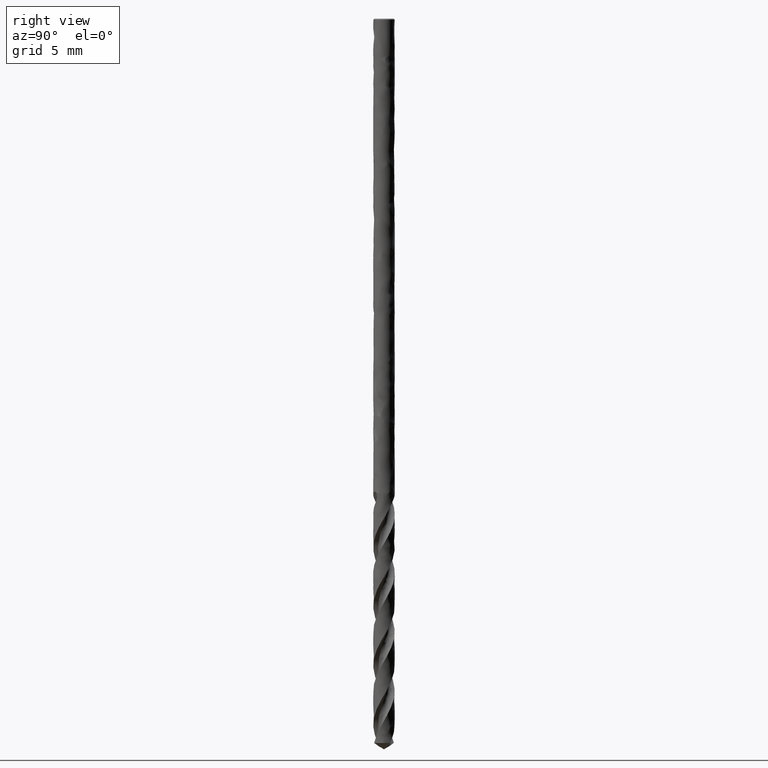
[diagram: clean part render]
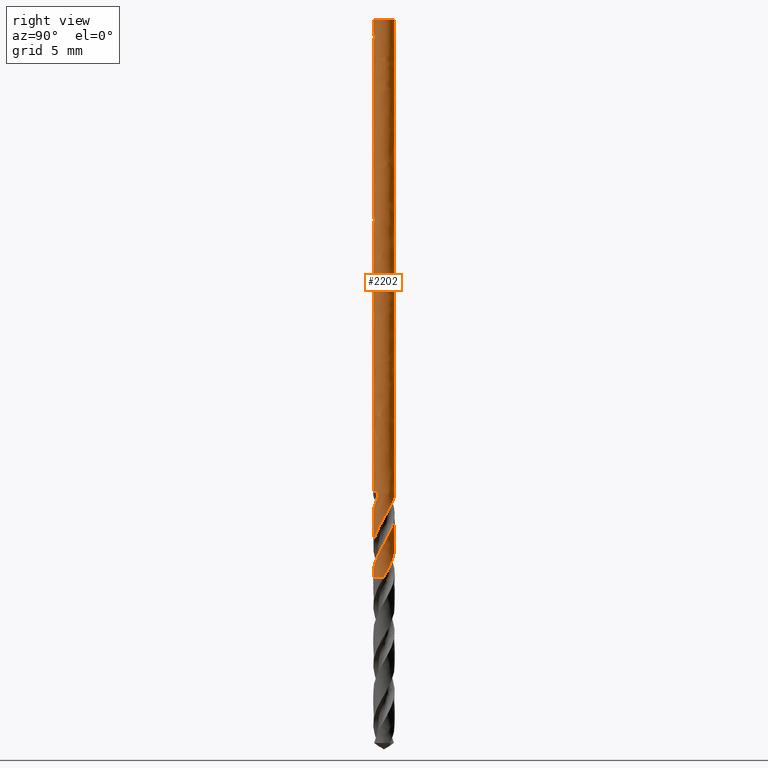
[diagram: same view with one face highlighted and labeled with its STEP entity id]
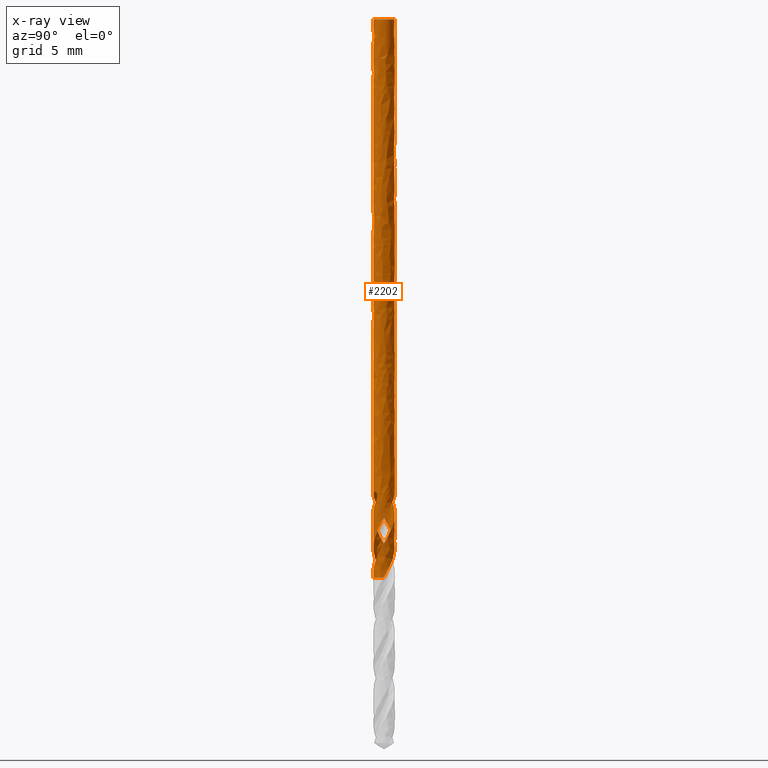
[diagram: x-ray of the same camera — body ghosted, the highlighted face saturated]
A machine part, right view. The second image highlights one B-rep face of the part: STEP entity #2202.
The next image is the same camera in x-ray: the body ghosted, the highlighted face saturated — about 0% of this face is hidden behind the body in this view.
In plain terms, the highlighted face is a freeform B-spline surface patch.
Its self-contained STEP definition (entity closure, byte-faithful):
#73 = VERTEX_POINT('', #74);
#74 = CARTESIAN_POINT('', (-0.5, 3.36777869765524E-17, -0.0500000000000007));
#90 = EDGE_CURVE('', #73, #73, #91, .T.);
#91 = CIRCLE('', #92, 0.5);
#92 = AXIS2_PLACEMENT_3D('', #93, #94, #95);
#93 = CARTESIAN_POINT('', (1.87469972832725E-34, 3.06161699786854E-18, -0.0500000000000007));
#94 = DIRECTION('', (3.74939945665464E-33, 6.12323399573677E-17, -1.));
#95 = DIRECTION('', (-1., 6.12323399573677E-17, 0.));
#131 = VERTEX_POINT('', #132);
#132 = CARTESIAN_POINT('', (-0.118984947794991, -0.48563626532439, -26.));
#138 = EDGE_CURVE('', #139, #131, #141, .T.);
#139 = VERTEX_POINT('', #140);
#140 = CARTESIAN_POINT('', (0.344099186685568, 0.362761284762213, -23.7222647331824));
#141 = B_SPLINE_CURVE_WITH_KNOTS('', 3, (#142, #143, #144, #145, #146, #147, #148, #149, #150, #151, #152, #153, #154, #155, #156, #157, #158, #159, #160, #161, #162, #163, #164, #165, #166, #167, #168, #169, #170, #171, #172, #173, #174, #175, #176, #177, #178, #179, #180, #181, #182, #183, #184, #185, #186, #187, #188, #189, #190, #191, #192, #193, #194, #195, #196, #197, #198, #199, #200, #201, #202, #203, #204, #205, #206, #207, #208), .UNSPECIFIED., .F., .U., (4, 3, 3, 3, 3, 3, 3, 3, 3, 3, 3, 3, 3, 3, 3, 3, 3, 3, 3, 3, 3, 3, 4), (0., 0.196926473839671, 0.393621842371934, 0.590087292866386, 0.721106869520296, 0.808502501696958, 0.825803614635655, 0.95756827702391, 1.08924947999374, 1.22085174690348, 1.35237856539361, 1.48383252619021, 1.61521554609023, 1.74652891714702, 1.87777329029088, 2.00894863735045, 2.14005438760696, 2.27108939117319, 2.35849243512719, 2.38442485328717, 2.41038546397622, 2.54214161870553, 2.62772270045096), .UNSPECIFIED.);
#142 = CARTESIAN_POINT('', (0.344099186685568, 0.362761284762213, -23.7222647331824));
#143 = CARTESIAN_POINT('', (0.367900570746748, 0.340184352654336, -23.7791212996743));
#144 = CARTESIAN_POINT('', (0.389494531858841, 0.315229633454011, -23.8360487309301));
#145 = CARTESIAN_POINT('', (0.408415019104696, 0.288439200126668, -23.8929097962067));
#146 = CARTESIAN_POINT('', (0.427313301997138, 0.261680207017641, -23.9497041315323));
#147 = CARTESIAN_POINT('', (0.44358892022743, 0.23302691478, -24.0065692094253));
#148 = CARTESIAN_POINT('', (0.456892584858007, 0.203098906697717, -24.0633680841781));
#149 = CARTESIAN_POINT('', (0.470180698779432, 0.17320588158908, -24.120100566489));
#150 = CARTESIAN_POINT('', (0.48053489037603, 0.141971375345408, -24.1769035549262));
#151 = CARTESIAN_POINT('', (0.48773456553148, 0.110068131563221, -24.2336405726899));
#152 = CARTESIAN_POINT('', (0.492535910442449, 0.0887923831621218, -24.2714775563901));
#153 = CARTESIAN_POINT('', (0.49594429242151, 0.0671923729118835, -24.3093357859703));
#154 = CARTESIAN_POINT('', (0.497927683886733, 0.0454755057066096, -24.3471748075696));
#155 = CARTESIAN_POINT('', (0.499250690382279, 0.0309894312834338, -24.3724150449301));
#156 = CARTESIAN_POINT('', (0.499941177318156, 0.0164429668169745, -24.3976617459183));
#157 = CARTESIAN_POINT('', (0.499996396646952, 0.00189824657812456, -24.4229028699898));
#158 = CARTESIAN_POINT('', (0.500007328038145, -0.000981071772767737, -24.4278996819286));
#159 = CARTESIAN_POINT('', (0.499993386875457, -0.0038604797155139, -24.4328965585463));
#160 = CARTESIAN_POINT('', (0.499954577172885, -0.00673949285045373, -24.4378934075924));
#161 = CARTESIAN_POINT('', (0.499659003854867, -0.0286659547538503, -24.475949232665));
#162 = CARTESIAN_POINT('', (0.497917741054891, -0.050582833794678, -24.5140265930884));
#163 = CARTESIAN_POINT('', (0.494748394848627, -0.0722774224409476, -24.5520844830094));
#164 = CARTESIAN_POINT('', (0.491581056098583, -0.0939582697872464, -24.5901182671549));
#165 = CARTESIAN_POINT('', (0.486984059422884, -0.11544030166431, -24.628173498804));
#166 = CARTESIAN_POINT('', (0.48100264420824, -0.136515406694621, -24.6662093047351));
#167 = CARTESIAN_POINT('', (0.475024814542179, -0.157577878291158, -24.7042223101709));
#168 = CARTESIAN_POINT('', (0.467657875705538, -0.178256336812774, -24.7422567486659));
#169 = CARTESIAN_POINT('', (0.458973722240521, -0.198351007793677, -24.780271751182));
#170 = CARTESIAN_POINT('', (0.450294547456115, -0.218434158371448, -24.8182649594545));
#171 = CARTESIAN_POINT('', (0.4402905258427, -0.237955372042359, -24.8562795977118));
#172 = CARTESIAN_POINT('', (0.429058851173414, -0.256726512518218, -24.8942748428915));
#173 = CARTESIAN_POINT('', (0.41783339815474, -0.275487254947387, -24.9322490410637));
#174 = CARTESIAN_POINT('', (0.405369802005946, -0.293518558746211, -24.9702445817133));
#175 = CARTESIAN_POINT('', (0.391788873509193, -0.310646871212956, -25.0082208278679));
#176 = CARTESIAN_POINT('', (0.37821527414302, -0.327765940155685, -25.046176579631));
#177 = CARTESIAN_POINT('', (0.363511138983502, -0.344001168589144, -25.0841535823824));
#178 = CARTESIAN_POINT('', (0.347818694992984, -0.359196541483039, -25.1221113491415));
#179 = CARTESIAN_POINT('', (0.332134569890038, -0.374383858996983, -25.1600489937071));
#180 = CARTESIAN_POINT('', (0.315446579776912, -0.388548519379822, -25.1980078674172));
#181 = CARTESIAN_POINT('', (0.297915659031978, -0.401554803362556, -25.2359474860696));
#182 = CARTESIAN_POINT('', (0.280393949816178, -0.414554253262496, -25.2738671695511));
#183 = CARTESIAN_POINT('', (0.262011844364771, -0.426410174222365, -25.3118080967889));
#184 = CARTESIAN_POINT('', (0.242946147378465, -0.437009347124247, -25.3497297939964));
#185 = CARTESIAN_POINT('', (0.223890477720382, -0.44760294554408, -25.3876315468346));
#186 = CARTESIAN_POINT('', (0.204131985845398, -0.456952208857229, -25.4255544694642));
#187 = CARTESIAN_POINT('', (0.183860468499857, -0.464968093661292, -25.4634582544614));
#188 = CARTESIAN_POINT('', (0.163599706474063, -0.472979725532403, -25.5013419291077));
#189 = CARTESIAN_POINT('', (0.142805120649036, -0.479667832916467, -25.5392466749675));
#190 = CARTESIAN_POINT('', (0.121676220686387, -0.484968965315817, -25.577132359724));
#191 = CARTESIAN_POINT('', (0.100558722204897, -0.490267237142146, -25.6149976007791));
#192 = CARTESIAN_POINT('', (0.0790850234638213, -0.494185624284159, -25.6528838764601));
#193 = CARTESIAN_POINT('', (0.0574606436649411, -0.496687300451369, -25.6907510749476));
#194 = CARTESIAN_POINT('', (0.0430367373299908, -0.498355969937007, -25.7160092756096));
#195 = CARTESIAN_POINT('', (0.0285374823998548, -0.499396034915961, -25.7412738818364));
#196 = CARTESIAN_POINT('', (0.014024669057018, -0.499803269955135, -25.7665329918957));
#197 = CARTESIAN_POINT('', (0.00971872812797696, -0.499924096288492, -25.7740273510711));
#198 = CARTESIAN_POINT('', (0.00541119416590663, -0.499989273532473, -25.7815218988463));
#199 = CARTESIAN_POINT('', (0.00110369147589999, -0.499998781863641, -25.7890163285046));
#200 = CARTESIAN_POINT('', (-0.00320849413237565, -0.500008300531827, -25.7965189057612));
#201 = CARTESIAN_POINT('', (-0.00752082615557323, -0.499962029566461, -25.8040216769894));
#202 = CARTESIAN_POINT('', (-0.0118316755595543, -0.49985999185117, -25.8115243342878));
#203 = CARTESIAN_POINT('', (-0.0337102418186049, -0.499342126645102, -25.8496020701212));
#204 = CARTESIAN_POINT('', (-0.0555645109819078, -0.497384528532371, -25.8877011963479));
#205 = CARTESIAN_POINT('', (-0.0771833711274014, -0.494006808881627, -25.9257809771782));
#206 = CARTESIAN_POINT('', (-0.0912257165582885, -0.491812840014386, -25.9505153726438));
#207 = CARTESIAN_POINT('', (-0.105181948651777, -0.489018115589161, -25.975264770325));
#208 = CARTESIAN_POINT('', (-0.118984947794991, -0.48563626532439, -26.));
#334 = EDGE_CURVE('', #335, #139, #337, .T.);
#335 = VERTEX_POINT('', #336);
#336 = CARTESIAN_POINT('', (-0.0421385007352414, 0.498221182564312, -22.9845844561142));
#337 = B_SPLINE_CURVE_WITH_KNOTS('', 3, (#338, #339, #340, #341, #342, #343, #344, #345, #346, #347, #348, #349, #350, #351, #352, #353, #354, #355, #356, #357, #358, #359, #360, #361, #362, #363, #364, #365, #366, #367, #368, #369, #370, #371), .UNSPECIFIED., .F., .U., (4, 3, 3, 3, 3, 3, 3, 3, 3, 3, 3, 4), (0., 0.0388913516655184, 0.0777800422021859, 0.103725173882086, 0.19145449735456, 0.249901142041677, 0.30834879980287, 0.366794454255261, 0.454482517252244, 0.586037937779096, 0.717516691467917, 0.849632346404978), .UNSPECIFIED.);
#338 = CARTESIAN_POINT('', (-0.0421385007352406, 0.498221182564312, -22.9845844561142));
#339 = CARTESIAN_POINT('', (-0.0359806589518937, 0.498741999883198, -22.9959804829042));
#340 = CARTESIAN_POINT('', (-0.0297907919931083, 0.499150596709092, -23.0073649713072));
#341 = CARTESIAN_POINT('', (-0.0235679907205864, 0.499444240945272, -23.018733797548));
#342 = CARTESIAN_POINT('', (-0.0173456152413397, 0.499737865088935, -23.0301018458803));
#343 = CARTESIAN_POINT('', (-0.0110908861459325, 0.499916418507088, -23.0414558047778));
#344 = CARTESIAN_POINT('', (-0.00481158708354142, 0.499976848093733, -23.052796150724));
#345 = CARTESIAN_POINT('', (-0.000622265232305504, 0.500017164534354, -23.0603620205131));
#346 = CARTESIAN_POINT('', (0.00357818924508615, 0.500004918117309, -23.0679222009077));
#347 = CARTESIAN_POINT('', (0.00778737930856375, 0.499939353045453, -23.0754768583377));
#348 = CARTESIAN_POINT('', (0.0220200839713048, 0.499717655215266, -23.1010217271624));
#349 = CARTESIAN_POINT('', (0.0363539512080463, 0.498885291816685, -23.1265127376037));
#350 = CARTESIAN_POINT('', (0.0507067717601202, 0.497422178132086, -23.1519492309894));
#351 = CARTESIAN_POINT('', (0.0602688448488091, 0.496447428957285, -23.1688954199278));
#352 = CARTESIAN_POINT('', (0.0698427877210999, 0.495192744500531, -23.185821203595));
#353 = CARTESIAN_POINT('', (0.0794084324349207, 0.493654029516887, -23.2027234961806));
#354 = CARTESIAN_POINT('', (0.08897424295307, 0.492115287862212, -23.219626081739));
#355 = CARTESIAN_POINT('', (0.0985342040226804, 0.490291705126066, -23.236508450517));
#356 = CARTESIAN_POINT('', (0.108047971178655, 0.48818606690911, -23.253379264887));
#357 = CARTESIAN_POINT('', (0.117561412247764, 0.486080500863457, -23.2702495010055));
#358 = CARTESIAN_POINT('', (0.127027272926523, 0.483693079357972, -23.2871137903167));
#359 = CARTESIAN_POINT('', (0.136400578912863, 0.481035219159924, -23.3039844971808));
#360 = CARTESIAN_POINT('', (0.150463678274506, 0.477047538387637, -23.329296209748));
#361 = CARTESIAN_POINT('', (0.164336229150949, 0.472447739061194, -23.3546254256264));
#362 = CARTESIAN_POINT('', (0.177983186448954, 0.467249382387462, -23.3799452360341));
#363 = CARTESIAN_POINT('', (0.198457252643264, 0.459450464554312, -23.417931687006));
#364 = CARTESIAN_POINT('', (0.218443385453546, 0.450291990575726, -23.4559292530841));
#365 = CARTESIAN_POINT('', (0.237725391056646, 0.439871161190261, -23.4939107161704));
#366 = CARTESIAN_POINT('', (0.256996159643478, 0.429456404774162, -23.5318700447169));
#367 = CARTESIAN_POINT('', (0.275588572169461, 0.417768735587832, -23.5698517163199));
#368 = CARTESIAN_POINT('', (0.293327111586233, 0.404918764208893, -23.6078117314906));
#369 = CARTESIAN_POINT('', (0.311151578938732, 0.392006545793217, -23.6459556302194));
#370 = CARTESIAN_POINT('', (0.328131118084428, 0.377907882950587, -23.6841203315024));
#371 = CARTESIAN_POINT('', (0.344099186685562, 0.362761284762219, -23.7222647331824));
#374 = VERTEX_POINT('', #375);
#375 = CARTESIAN_POINT('', (-0.172332556560859, 0.469362855314734, -22.7506156926968));
#384 = EDGE_CURVE('', #385, #374, #387, .T.);
#385 = VERTEX_POINT('', #386);
#386 = CARTESIAN_POINT('', (-0.281196563183585, 0.413434992294728, -22.));
#387 = B_SPLINE_CURVE_WITH_KNOTS('', 3, (#388, #389, #390, #391, #392, #393, #394, #395, #396, #397, #398, #399, #400, #401, #402, #403, #404, #405, #406, #407, #408, #409, #410, #411, #412, #413, #414, #415, #416, #417, #418, #419, #420, #421, #422, #423, #424, #425, #426, #427, #428, #429, #430, #431, #432, #433, #434, #435, #436, #437, #438, #439, #440, #441, #442, #443, #444, #445, #446, #447, #448, #449, #450, #451, #452, #453, #454), .UNSPECIFIED., .F., .U., (4, 3, 3, 3, 3, 3, 3, 3, 3, 3, 3, 3, 3, 3, 3, 3, 3, 3, 3, 3, 3, 3, 4), (0., 0.0391274336491185, 0.065006821455941, 0.0907835503310905, 0.11647132552176, 0.142116802881992, 0.167781848203737, 0.193510638330998, 0.219317108270377, 0.230833883953177, 0.269712692873854, 0.308711482199462, 0.347785178015569, 0.406621996210672, 0.465496330425806, 0.524349070807742, 0.583149695794916, 0.641880247117389, 0.700534272335071, 0.759115790201938, 0.817630653124318, 0.876080417384562, 0.914824195077473), .UNSPECIFIED.);
#388 = CARTESIAN_POINT('', (-0.281196563183499, 0.413434992294786, -22.));
#389 = CARTESIAN_POINT('', (-0.291980992011019, 0.40609999555113, -22.0000121228821));
#390 = CARTESIAN_POINT('', (-0.302547066322303, 0.398282061348537, -22.0011523680636));
#391 = CARTESIAN_POINT('', (-0.312522960335349, 0.390293990811069, -22.0037559227603));
#392 = CARTESIAN_POINT('', (-0.319121144928761, 0.385010578228449, -22.0054779473192));
#393 = CARTESIAN_POINT('', (-0.325507933007179, 0.379617502642165, -22.0078546432255));
#394 = CARTESIAN_POINT('', (-0.331536598464189, 0.374277282076799, -22.0109454512346));
#395 = CARTESIAN_POINT('', (-0.337541349276856, 0.368958245217255, -22.0140239985577));
#396 = CARTESIAN_POINT('', (-0.343238097331504, 0.363649495624863, -22.0178409374924));
#397 = CARTESIAN_POINT('', (-0.348475864288894, 0.358559021652097, -22.0223663668741));
#398 = CARTESIAN_POINT('', (-0.353695556079666, 0.353486114548185, -22.0268761793162));
#399 = CARTESIAN_POINT('', (-0.358507175165555, 0.34858511892328, -22.0321339036271));
#400 = CARTESIAN_POINT('', (-0.362803305138095, 0.344054881931466, -22.0379937839327));
#401 = CARTESIAN_POINT('', (-0.367092361046191, 0.33953210448781, -22.0438440152818));
#402 = CARTESIAN_POINT('', (-0.370909643071476, 0.335337138389468, -22.0503472027984));
#403 = CARTESIAN_POINT('', (-0.374222949013926, 0.331597925854974, -22.0572838458323));
#404 = CARTESIAN_POINT('', (-0.377538783068536, 0.327855860233913, -22.0642257816499));
#405 = CARTESIAN_POINT('', (-0.380380810367296, 0.324537101834545, -22.0716560771744));
#406 = CARTESIAN_POINT('', (-0.382778713260346, 0.321683783667679, -22.0793565265535));
#407 = CARTESIAN_POINT('', (-0.385182571874559, 0.318823378655288, -22.0870761016984));
#408 = CARTESIAN_POINT('', (-0.387158536936373, 0.316409199277241, -22.095115841276));
#409 = CARTESIAN_POINT('', (-0.388763534006163, 0.314424736029212, -22.103303526145));
#410 = CARTESIAN_POINT('', (-0.390373376848732, 0.312434281332246, -22.1115159310967));
#411 = CARTESIAN_POINT('', (-0.391619018011499, 0.310864679495661, -22.1199159766798));
#412 = CARTESIAN_POINT('', (-0.392559164975776, 0.309672895154746, -22.1283831410658));
#413 = CARTESIAN_POINT('', (-0.39297872881856, 0.309141031906931, -22.1321618226574));
#414 = CARTESIAN_POINT('', (-0.393337939445552, 0.308683507339991, -22.1359587370058));
#415 = CARTESIAN_POINT('', (-0.393641457401995, 0.308295966588018, -22.1397659716872));
#416 = CARTESIAN_POINT('', (-0.394666085905454, 0.306987690447201, -22.1526185924005));
#417 = CARTESIAN_POINT('', (-0.395062642869012, 0.306472721242732, -22.1656254813353));
#418 = CARTESIAN_POINT('', (-0.39497451529393, 0.306586255837286, -22.1785842873242));
#419 = CARTESIAN_POINT('', (-0.394886115756242, 0.306700140800769, -22.1915830843219));
#420 = CARTESIAN_POINT('', (-0.394309341399913, 0.307445295582322, -22.2045880833785));
#421 = CARTESIAN_POINT('', (-0.39333977100154, 0.308680780983295, -22.2174924631279));
#422 = CARTESIAN_POINT('', (-0.392368338311616, 0.309918639429101, -22.2304216288211));
#423 = CARTESIAN_POINT('', (-0.390999268254329, 0.311651981537714, -22.2432838560203));
#424 = CARTESIAN_POINT('', (-0.389293874556268, 0.31376787476249, -22.256021749438));
#425 = CARTESIAN_POINT('', (-0.386725908131076, 0.316953967666839, -22.2752023542811));
#426 = CARTESIAN_POINT('', (-0.38338922785735, 0.321014034200737, -22.2941558405729));
#427 = CARTESIAN_POINT('', (-0.379410964031954, 0.32564907549745, -22.3127926603343));
#428 = CARTESIAN_POINT('', (-0.37543016355298, 0.33028707222764, -22.3314413634592));
#429 = CARTESIAN_POINT('', (-0.370794945756154, 0.335513705638949, -22.3498181543321));
#430 = CARTESIAN_POINT('', (-0.365584353080794, 0.34109834473726, -22.3678955834767));
#431 = CARTESIAN_POINT('', (-0.360375671538198, 0.346680935510664, -22.385966382211));
#432 = CARTESIAN_POINT('', (-0.354583654537785, 0.352629985958059, -22.4037659649767));
#433 = CARTESIAN_POINT('', (-0.348268033597631, 0.358760890808963, -22.4212980609125));
#434 = CARTESIAN_POINT('', (-0.34195800527859, 0.36488636660891, -22.4388146317921));
#435 = CARTESIAN_POINT('', (-0.335118153458746, 0.37120011300094, -22.4560819890621));
#436 = CARTESIAN_POINT('', (-0.327808921968843, 0.377546435127689, -22.4731250960862));
#437 = CARTESIAN_POINT('', (-0.320508401009427, 0.383885194238757, -22.4901478925613));
#438 = CARTESIAN_POINT('', (-0.312733823861132, 0.390261464333014, -22.5069592287675));
#439 = CARTESIAN_POINT('', (-0.304550930957853, 0.396546000424549, -22.5235964744238));
#440 = CARTESIAN_POINT('', (-0.296378700391393, 0.40282234774454, -22.5402120416935));
#441 = CARTESIAN_POINT('', (-0.287795226306404, 0.409010172545861, -22.5566634842682));
#442 = CARTESIAN_POINT('', (-0.278878431943556, 0.415002193002161, -22.5729987661129));
#443 = CARTESIAN_POINT('', (-0.269972660407098, 0.420986806199919, -22.5893138544925));
#444 = CARTESIAN_POINT('', (-0.260729331608233, 0.426779443545957, -22.6055192271418));
#445 = CARTESIAN_POINT('', (-0.251239391308706, 0.432294770099322, -22.6216695422081));
#446 = CARTESIAN_POINT('', (-0.241760248807987, 0.437803821230017, -22.6378014811997));
#447 = CARTESIAN_POINT('', (-0.232032432444306, 0.443037544761834, -22.6538853043482));
#448 = CARTESIAN_POINT('', (-0.222165088044725, 0.447931550188286, -22.6699827410361));
#449 = CARTESIAN_POINT('', (-0.2123087212137, 0.45282011096034, -22.6860622690844));
#450 = CARTESIAN_POINT('', (-0.202309715219685, 0.457371611190225, -22.7021612031438));
#451 = CARTESIAN_POINT('', (-0.192281806268754, 0.461549246536084, -22.7183348119179));
#452 = CARTESIAN_POINT('', (-0.185634746523744, 0.46431841724482, -22.7290555857441));
#453 = CARTESIAN_POINT('', (-0.178973607682273, 0.466924508724147, -22.7398111747988));
#454 = CARTESIAN_POINT('', (-0.172332556560859, 0.469362855314734, -22.7506156926968));
#456 = EDGE_CURVE('', #385, #457, #459, .T.);
#457 = VERTEX_POINT('', #458);
#458 = CARTESIAN_POINT('', (-0.280846103664542, 0.413673139152697, -22.));
#459 = LINE('', #460, #461);
#460 = CARTESIAN_POINT('', (-0.281196563183585, 0.413434992294728, -22.));
#461 = VECTOR('', #462, 0.000423716651134482);
#462 = DIRECTION('', (0.000350459519043056, 0.000238146857969468, 0.));
#464 = EDGE_CURVE('', #457, #465, #467, .T.);
#465 = VERTEX_POINT('', #466);
#466 = CARTESIAN_POINT('', (0.175542776335877, 0.468171692519205, -22.2981560609547));
#467 = B_SPLINE_CURVE_WITH_KNOTS('', 3, (#468, #469, #470, #471, #472, #473, #474, #475, #476, #477, #478, #479, #480, #481, #482, #483, #484, #485, #486, #487, #488, #489, #490, #491, #492, #493, #494, #495, #496, #497, #498, #499, #500, #501, #502, #503, #504), .UNSPECIFIED., .F., .U., (4, 3, 3, 3, 3, 3, 3, 3, 3, 3, 3, 3, 4), (0., 0.0389891934717924, 0.0776933901389336, 0.116235926442962, 0.154687903618714, 0.193089887644796, 0.250257808263509, 0.307393060585961, 0.324580992208179, 0.336074702262757, 0.42250637627511, 0.508800003796511, 0.577253122140679), .UNSPECIFIED.);
#468 = CARTESIAN_POINT('', (-0.280846103664397, 0.413673139152795, -22.));
#469 = CARTESIAN_POINT('', (-0.270093586928378, 0.42097311138711, -22.0000120672172));
#470 = CARTESIAN_POINT('', (-0.25902549147641, 0.427867924192994, -22.0011310461404));
#471 = CARTESIAN_POINT('', (-0.247864089889015, 0.43423886622859, -22.0030651010987));
#472 = CARTESIAN_POINT('', (-0.236784274082308, 0.440563238998165, -22.0049850188197));
#473 = CARTESIAN_POINT('', (-0.225546834761478, 0.4464122838077, -22.0077183073863));
#474 = CARTESIAN_POINT('', (-0.214287325222592, 0.451753187314653, -22.0110566135387));
#475 = CARTESIAN_POINT('', (-0.203074844599361, 0.457071782842766, -22.0143809761958));
#476 = CARTESIAN_POINT('', (-0.191796268573406, 0.461908905043626, -22.0183188686496));
#477 = CARTESIAN_POINT('', (-0.180542126724679, 0.466266598072102, -22.0227249292385));
#478 = CARTESIAN_POINT('', (-0.169314427486456, 0.470614052311963, -22.0271206373948));
#479 = CARTESIAN_POINT('', (-0.158079329153373, 0.474497252902874, -22.0319952866671));
#480 = CARTESIAN_POINT('', (-0.146902762214617, 0.477932608694696, -22.0372456695859));
#481 = CARTESIAN_POINT('', (-0.135740726434589, 0.481363498025522, -22.0424892262451));
#482 = CARTESIAN_POINT('', (-0.124613005755164, 0.484355404656708, -22.0481192512732));
#483 = CARTESIAN_POINT('', (-0.113570976618586, 0.486930830067169, -22.0540604386373));
#484 = CARTESIAN_POINT('', (-0.0971330278730031, 0.490764791232422, -22.0629049120734));
#485 = CARTESIAN_POINT('', (-0.0808357088574812, 0.493686867423156, -22.0724644100053));
#486 = CARTESIAN_POINT('', (-0.0648123773239431, 0.495781560513923, -22.0825636790364));
#487 = CARTESIAN_POINT('', (-0.0487982022357676, 0.497875056603754, -22.0926571768954));
#488 = CARTESIAN_POINT('', (-0.0330101324163159, 0.499148797603283, -22.1033208438151));
#489 = CARTESIAN_POINT('', (-0.0175538658744969, 0.499691766785147, -22.1144349896535));
#490 = CARTESIAN_POINT('', (-0.0129041751554247, 0.499855107573741, -22.1177784452425));
#491 = CARTESIAN_POINT('', (-0.0082821030413849, 0.499952491430182, -22.1211645092421));
#492 = CARTESIAN_POINT('', (-0.00369017866973094, 0.499986382395948, -22.1245905975713));
#493 = CARTESIAN_POINT('', (-0.00061952139226558, 0.500009045561159, -22.126881650779));
#494 = CARTESIAN_POINT('', (0.00243800213484325, 0.50000332115744, -22.129190862767));
#495 = CARTESIAN_POINT('', (0.00548166921098453, 0.499969950399684, -22.1315175238204));
#496 = CARTESIAN_POINT('', (0.0283697740333607, 0.499719005279078, -22.1490138073314));
#497 = CARTESIAN_POINT('', (0.0505257564097731, 0.497899728824889, -22.1675340712776));
#498 = CARTESIAN_POINT('', (0.0716822986896402, 0.494834970525094, -22.186848734822));
#499 = CARTESIAN_POINT('', (0.0928050502734946, 0.491775107179999, -22.2061325494726));
#500 = CARTESIAN_POINT('', (0.113013398759777, 0.487463228109741, -22.2262842829796));
#501 = CARTESIAN_POINT('', (0.132119080961114, 0.482228730423636, -22.2471402616726));
#502 = CARTESIAN_POINT('', (0.147274817975993, 0.478076422775075, -22.2636844355433));
#503 = CARTESIAN_POINT('', (0.161771324172981, 0.473335351462025, -22.2807109629617));
#504 = CARTESIAN_POINT('', (0.175542776335877, 0.468171692519206, -22.2981560609547));
#787 = EDGE_CURVE('', #374, #335, #788, .T.);
#788 = B_SPLINE_CURVE_WITH_KNOTS('', 3, (#789, #790, #791, #792, #793, #794, #795, #796, #797, #798, #799, #800, #801, #802, #803, #804, #805, #806, #807), .UNSPECIFIED., .F., .U., (4, 3, 3, 3, 3, 3, 4), (0., 0.0583547232358116, 0.0972733700906715, 0.136180253562862, 0.175073324377815, 0.201011701291627, 0.269601369969561), .UNSPECIFIED.);
#789 = CARTESIAN_POINT('', (-0.172332556560859, 0.469362855314734, -22.7506156926968));
#790 = CARTESIAN_POINT('', (-0.162330003292649, 0.473035420276635, -22.7668891355354));
#791 = CARTESIAN_POINT('', (-0.152424129276637, 0.476308796823041, -22.7833180124352));
#792 = CARTESIAN_POINT('', (-0.142688539263471, 0.479207659332421, -22.7999065214203));
#793 = CARTESIAN_POINT('', (-0.136195560312736, 0.4811410042277, -22.8109699330388));
#794 = CARTESIAN_POINT('', (-0.129777772907922, 0.482908055768815, -22.8221084150996));
#795 = CARTESIAN_POINT('', (-0.123463367078512, 0.484517076055871, -22.8333260355031));
#796 = CARTESIAN_POINT('', (-0.117150869814228, 0.486125610007381, -22.8445402653169));
#797 = CARTESIAN_POINT('', (-0.110938859596145, 0.487577643005968, -22.8558347012529));
#798 = CARTESIAN_POINT('', (-0.104802245673222, 0.488893126666655, -22.8671839490606));
#799 = CARTESIAN_POINT('', (-0.0986678103607954, 0.490208143306514, -22.8785291676772));
#800 = CARTESIAN_POINT('', (-0.0926077357763045, 0.491387286170103, -22.8899308928126));
#801 = CARTESIAN_POINT('', (-0.0865638121030833, 0.49244969939496, -22.9013509110086));
#802 = CARTESIAN_POINT('', (-0.0825330280330826, 0.493158238836232, -22.9089670937918));
#803 = CARTESIAN_POINT('', (-0.078507632456996, 0.493815004697725, -22.9165911013606));
#804 = CARTESIAN_POINT('', (-0.0744657712013926, 0.494423754404441, -22.9242100428837));
#805 = CARTESIAN_POINT('', (-0.0637777499236855, 0.496033490465809, -22.9443570504039));
#806 = CARTESIAN_POINT('', (-0.0529986099781241, 0.497302657344327, -22.9644861651497));
#807 = CARTESIAN_POINT('', (-0.0421385007352414, 0.498221182564312, -22.9845844561142));
#901 = EDGE_CURVE('', #465, #902, #904, .T.);
#902 = VERTEX_POINT('', #903);
#903 = CARTESIAN_POINT('', (-0.5, 1.62101833873504E-15, -25.9732384858011));
#904 = B_SPLINE_CURVE_WITH_KNOTS('', 3, (#905, #906, #907, #908, #909, #910, #911, #912, #913, #914, #915, #916, #917, #918, #919, #920, #921, #922, #923, #924, #925, #926, #927, #928, #929, #930, #931, #932, #933, #934, #935, #936, #937, #938, #939, #940, #941, #942, #943, #944, #945, #946, #947, #948, #949, #950, #951, #952, #953, #954, #955, #956, #957, #958, #959, #960, #961, #962, #963, #964, #965, #966, #967, #968, #969, #970, #971, #972, #973, #974, #975, #976, #977, #978, #979, #980, #981, #982, #983, #984, #985, #986, #987, #988, #989, #990, #991, #992, #993, #994, #995, #996, #997, #998, #999, #1000, #1001, #1002, #1003, #1004, #1005, #1006, #1007, #1008, #1009, #1010, #1011, #1012, #1013, #1014, #1015, #1016, #1017, #1018, #1019, #1020, #1021, #1022, #1023, #1024, #1025, #1026, #1027, #1028, #1029, #1030, #1031, #1032, #1033, #1034, #1035, #1036, #1037, #1038, #1039, #1040, #1041, #1042, #1043, #1044, #1045, #1046), .UNSPECIFIED., .F., .U., (4, 3, 3, 3, 3, 3, 3, 3, 3, 3, 3, 3, 3, 3, 3, 3, 3, 3, 3, 3, 3, 3, 3, 3, 3, 3, 3, 3, 3, 3, 3, 3, 3, 3, 3, 3, 3, 3, 3, 3, 3, 3, 3, 3, 3, 3, 3, 4), (0., 0.0582100183214362, 0.116426586186102, 0.174655494118811, 0.261920740568505, 0.3201954962799, 0.378493486466091, 0.436819253618785, 0.524340316297741, 0.563249736463182, 0.621644571921524, 0.647594459139615, 0.686516456216893, 0.725419092296311, 0.764325313409144, 0.851798883184074, 0.939214299529652, 1.0266183722663, 1.08491757594944, 1.11085016488478, 1.12814580161043, 1.18661651503583, 1.27435931954315, 1.36208218412676, 1.44978011025991, 1.5374558576345, 1.73479861997005, 1.93190037801099, 2.06320977007571, 2.19445044233295, 2.32562233355451, 2.45672483647831, 2.58775676196614, 2.67515840436024, 2.69245040953451, 2.70975170462343, 2.84151334954947, 2.97319250378815, 3.10479357745381, 3.23632000963667, 3.36777431866443, 3.49915835482925, 3.63047335846563, 3.76171996843834, 3.89289813310516, 4.02400725234672, 4.15504616066872, 4.27414704999454), .UNSPECIFIED.);
#905 = CARTESIAN_POINT('', (0.175542776335877, 0.468171692519205, -22.2981560609547));
#906 = CARTESIAN_POINT('', (0.187253513583588, 0.463780706557749, -22.3129907317243));
#907 = CARTESIAN_POINT('', (0.198704381077654, 0.458985559103414, -22.3279184787886));
#908 = CARTESIAN_POINT('', (0.209864211462314, 0.453824870128687, -22.3429289769993));
#909 = CARTESIAN_POINT('', (0.221025297503537, 0.448663600495227, -22.3579411641273));
#910 = CARTESIAN_POINT('', (0.231901282669531, 0.443133946829415, -22.3730456943072));
#911 = CARTESIAN_POINT('', (0.242464918400559, 0.437276529606863, -22.388233668887));
#912 = CARTESIAN_POINT('', (0.253030793287699, 0.431417870797427, -22.4034248628364));
#913 = CARTESIAN_POINT('', (0.263290998724126, 0.425227607340522, -22.4187072759248));
#914 = CARTESIAN_POINT('', (0.273223965129894, 0.418746540139388, -22.4340717126245));
#915 = CARTESIAN_POINT('', (0.288110089430516, 0.409033633841753, -22.4570977559208));
#916 = CARTESIAN_POINT('', (0.302272397641739, 0.398659312171769, -22.4803323210741));
#917 = CARTESIAN_POINT('', (0.315656703560589, 0.387763904325221, -22.5037478364059));
#918 = CARTESIAN_POINT('', (0.3245945933795, 0.380488072806203, -22.519384455694));
#919 = CARTESIAN_POINT('', (0.333192049100652, 0.372975106045664, -22.5351107083027));
#920 = CARTESIAN_POINT('', (0.341436804140902, 0.365268269602042, -22.5509207098152));
#921 = CARTESIAN_POINT('', (0.349684846411631, 0.357558360399129, -22.5667370148648));
#922 = CARTESIAN_POINT('', (0.357583404152235, 0.349651354068341, -22.5826444351125));
#923 = CARTESIAN_POINT('', (0.365128074474358, 0.341586722854814, -22.5986340592407));
#924 = CARTESIAN_POINT('', (0.372676339569717, 0.333518249124756, -22.6146313018691));
#925 = CARTESIAN_POINT('', (0.379873612810886, 0.325288435735282, -22.6307173609195));
#926 = CARTESIAN_POINT('', (0.386716219583026, 0.316939371980662, -22.6468870923019));
#927 = CARTESIAN_POINT('', (0.396983932215491, 0.304411136728039, -22.6711506749841));
#928 = CARTESIAN_POINT('', (0.406458546671642, 0.291606776974354, -22.6956210282741));
#929 = CARTESIAN_POINT('', (0.415147488854038, 0.278662093759068, -22.7202795259176));
#930 = CARTESIAN_POINT('', (0.419010349882225, 0.272907249122644, -22.7312420053036));
#931 = CARTESIAN_POINT('', (0.422719068544538, 0.267123418732625, -22.7422447060558));
#932 = CARTESIAN_POINT('', (0.426276548772044, 0.261320309136132, -22.7532848210843));
#933 = CARTESIAN_POINT('', (0.431615576484312, 0.25261106524113, -22.7698537058889));
#934 = CARTESIAN_POINT('', (0.436616569873633, 0.243853600330553, -22.7865097006343));
#935 = CARTESIAN_POINT('', (0.44128550957179, 0.235089555366278, -22.8032511643624));
#936 = CARTESIAN_POINT('', (0.443360324196135, 0.231194930497277, -22.8106908478927));
#937 = CARTESIAN_POINT('', (0.445369652872063, 0.227298917525975, -22.8181483806747));
#938 = CARTESIAN_POINT('', (0.447313453125742, 0.223406970913457, -22.8256247595953));
#939 = CARTESIAN_POINT('', (0.450228941241611, 0.217569475998576, -22.8368385115493));
#940 = CARTESIAN_POINT('', (0.452996171204689, 0.211743178995694, -22.8480975758307));
#941 = CARTESIAN_POINT('', (0.455623848694476, 0.205929377459485, -22.8593944636069));
#942 = CARTESIAN_POINT('', (0.458250219096702, 0.200118467886884, -22.8706857319638));
#943 = CARTESIAN_POINT('', (0.460737777861919, 0.194319509320015, -22.8820160984125));
#944 = CARTESIAN_POINT('', (0.46310343206488, 0.18850785450408, -22.8933644719149));
#945 = CARTESIAN_POINT('', (0.465469304272332, 0.182695664120924, -22.9047138912154));
#946 = CARTESIAN_POINT('', (0.467714822881685, 0.176867420984989, -22.9160807621846));
#947 = CARTESIAN_POINT('', (0.46985693817077, 0.170980869259661, -22.9274362928936));
#948 = CARTESIAN_POINT('', (0.474673095223452, 0.157746027161122, -22.9529671406447));
#949 = CARTESIAN_POINT('', (0.478947456136757, 0.144258424684837, -22.9784763526327));
#950 = CARTESIAN_POINT('', (0.482651146111489, 0.130567496557402, -23.003952258281));
#951 = CARTESIAN_POINT('', (0.486352373830779, 0.116885670315528, -23.0294112272559));
#952 = CARTESIAN_POINT('', (0.489489320706237, 0.102979610874749, -23.0548392222233));
#953 = CARTESIAN_POINT('', (0.492032625749652, 0.0889038536730895, -23.0802253447288));
#954 = CARTESIAN_POINT('', (0.494575600756798, 0.0748299230358029, -23.1056081729613));
#955 = CARTESIAN_POINT('', (0.49652530100069, 0.0605835091730312, -23.1309625074924));
#956 = CARTESIAN_POINT('', (0.497857995397006, 0.0462322011079364, -23.1562823435309));
#957 = CARTESIAN_POINT('', (0.498746913036946, 0.0366597657990303, -23.1731708732323));
#958 = CARTESIAN_POINT('', (0.499361824117421, 0.0270379840713981, -23.19004819169));
#959 = CARTESIAN_POINT('', (0.499697654305815, 0.0173854617789153, -23.2069111736109));
#960 = CARTESIAN_POINT('', (0.49984703792819, 0.0130918372182663, -23.2144121470506));
#961 = CARTESIAN_POINT('', (0.499941227392296, 0.00879181990297522, -23.2219107675154));
#962 = CARTESIAN_POINT('', (0.499979860146322, 0.00448769964065971, -23.2294071123684));
#963 = CARTESIAN_POINT('', (0.500005626107483, 0.00161708380411081, -23.2344067696594));
#964 = CARTESIAN_POINT('', (0.500006681533042, -0.00125540812699756, -23.2394055386863));
#965 = CARTESIAN_POINT('', (0.499982951738096, -0.0041289188972899, -23.2444035427823));
#966 = CARTESIAN_POINT('', (0.499902729306167, -0.0138432894891175, -23.2613001086522));
#967 = CARTESIAN_POINT('', (0.499538669714454, -0.0235713327757285, -23.2781898381614));
#968 = CARTESIAN_POINT('', (0.498891852522477, -0.0332703995571317, -23.2950830054465));
#969 = CARTESIAN_POINT('', (0.497921220370024, -0.0478250931917461, -23.3204333695478));
#970 = CARTESIAN_POINT('', (0.496314427263929, -0.062324210587803, -23.3457992734312));
#971 = CARTESIAN_POINT('', (0.494078551507884, -0.0767227797977566, -23.3711587737802));
#972 = CARTESIAN_POINT('', (0.491843183864068, -0.091118076871913, -23.3965125110755));
#973 = CARTESIAN_POINT('', (0.488976674082852, -0.105423942243119, -23.4218693759063));
#974 = CARTESIAN_POINT('', (0.485491356487218, -0.119574841736073, -23.4472196825315));
#975 = CARTESIAN_POINT('', (0.482007029721291, -0.133721718315417, -23.4725627823997));
#976 = CARTESIAN_POINT('', (0.477903179215687, -0.147718454613519, -23.4979125010543));
#977 = CARTESIAN_POINT('', (0.473197987706287, -0.161504378983121, -23.5232572603356));
#978 = CARTESIAN_POINT('', (0.4684939861373, -0.175286816899831, -23.548595609941));
#979 = CARTESIAN_POINT('', (0.463186456052973, -0.188866023041252, -23.5739404375441));
#980 = CARTESIAN_POINT('', (0.457297803530347, -0.202184863148359, -23.5992790929164));
#981 = CARTESIAN_POINT('', (0.444043477333568, -0.232163241166768, -23.6563119713895));
#982 = CARTESIAN_POINT('', (0.427812428815318, -0.260865125531811, -23.7134144545847));
#983 = CARTESIAN_POINT('', (0.40895659510011, -0.287670824596852, -23.7704498959436));
#984 = CARTESIAN_POINT('', (0.390123789018903, -0.314443787277147, -23.8274156829298));
#985 = CARTESIAN_POINT('', (0.368628637090652, -0.339387837515168, -23.8844508998409));
#986 = CARTESIAN_POINT('', (0.344935157658079, -0.36196648603344, -23.9414192302184));
#987 = CARTESIAN_POINT('', (0.329150537515103, -0.377008404685232, -23.9793715899699));
#988 = CARTESIAN_POINT('', (0.312372346998618, -0.39102281954905, -24.0173446658438));
#989 = CARTESIAN_POINT('', (0.294761728648038, -0.403875628534849, -24.0552981450384));
#990 = CARTESIAN_POINT('', (0.277160326685437, -0.416721711097312, -24.093231761558));
#991 = CARTESIAN_POINT('', (0.258708972587845, -0.42842083578161, -24.1311860671369));
#992 = CARTESIAN_POINT('', (0.239584587642617, -0.438861282598632, -24.1691208192942));
#993 = CARTESIAN_POINT('', (0.220470225466861, -0.449296257752542, -24.2070356904839));
#994 = CARTESIAN_POINT('', (0.200663542725511, -0.458484791339912, -24.2449711890286));
#995 = CARTESIAN_POINT('', (0.180354237967815, -0.466339306564491, -24.2828871979962));
#996 = CARTESIAN_POINT('', (0.160055676579544, -0.474189666848281, -24.3207831498669));
#997 = CARTESIAN_POINT('', (0.139233758160157, -0.480715649703449, -24.3586996770165));
#998 = CARTESIAN_POINT('', (0.118087603564624, -0.485855243755152, -24.3965967433675));
#999 = CARTESIAN_POINT('', (0.0969528327439136, -0.490992070968983, -24.4344734082944));
#1000 = CARTESIAN_POINT('', (0.0754721157560894, -0.494749372021099, -24.4723706307472));
#1001 = CARTESIAN_POINT('', (0.0538504824806423, -0.49709166713662, -24.5102484066263));
#1002 = CARTESIAN_POINT('', (0.0394283006155634, -0.498654037828388, -24.5355138509807));
#1003 = CARTESIAN_POINT('', (0.0249351592711191, -0.499588483367355, -24.5607854949883));
#1004 = CARTESIAN_POINT('', (0.0104326327640624, -0.499891148324928, -24.5860514430051));
#1005 = CARTESIAN_POINT('', (0.00756337588821054, -0.499951029167771, -24.5910501923635));
#1006 = CARTESIAN_POINT('', (0.00469359282293713, -0.499986206030424, -24.5960489966861));
#1007 = CARTESIAN_POINT('', (0.00182376273894161, -0.499996673878407, -24.601047764694));
#1008 = CARTESIAN_POINT('', (-0.00104760912556357, -0.500007147350112, -24.6060492182277));
#1009 = CARTESIAN_POINT('', (-0.00391908082781685, -0.499992885442781, -24.6110507273984));
#1010 = CARTESIAN_POINT('', (-0.00679017250205057, -0.499953891431391, -24.6160522007407));
#1011 = CARTESIAN_POINT('', (-0.0286555738946137, -0.499656924351373, -24.6541419709714));
#1012 = CARTESIAN_POINT('', (-0.0505119585905197, -0.497922321851418, -24.6922526332931));
#1013 = CARTESIAN_POINT('', (-0.0721485433422842, -0.494767205555891, -24.7303435509136));
#1014 = CARTESIAN_POINT('', (-0.0937715822951222, -0.491614064552279, -24.7684106213366));
#1015 = CARTESIAN_POINT('', (-0.115197890550299, -0.48703886647681, -24.8064985125896));
#1016 = CARTESIAN_POINT('', (-0.136221108555143, -0.481086072947631, -24.8445667213241));
#1017 = CARTESIAN_POINT('', (-0.157231860616397, -0.475136809191503, -24.8826123571041));
#1018 = CARTESIAN_POINT('', (-0.177862144755751, -0.467805320881827, -24.9206787715145));
#1019 = CARTESIAN_POINT('', (-0.197913635250396, -0.45916249082652, -24.9587255198763));
#1020 = CARTESIAN_POINT('', (-0.217953752942821, -0.450524562810633, -24.9967506888875));
#1021 = CARTESIAN_POINT('', (-0.237436733696848, -0.440567738207138, -25.0347966262389));
#1022 = CARTESIAN_POINT('', (-0.256175658918052, -0.429387973490069, -25.072822921592));
#1023 = CARTESIAN_POINT('', (-0.274904308558996, -0.418214339251043, -25.1108283650423));
#1024 = CARTESIAN_POINT('', (-0.292909296333474, -0.405807429550103, -25.148854532078));
#1025 = CARTESIAN_POINT('', (-0.310018132399922, -0.392286575838715, -25.1868611156484));
#1026 = CARTESIAN_POINT('', (-0.327117822422389, -0.378772950107198, -25.2248473816541));
#1027 = CARTESIAN_POINT('', (-0.343340230839468, -0.364132417033535, -25.2628543045049));
#1028 = CARTESIAN_POINT('', (-0.358530137531203, -0.348505581708321, -25.3008417055313));
#1029 = CARTESIAN_POINT('', (-0.373712063057978, -0.332886957121531, -25.338809147007));
#1030 = CARTESIAN_POINT('', (-0.387878489393144, -0.316266700277115, -25.3767972027852));
#1031 = CARTESIAN_POINT('', (-0.400894120404854, -0.298804123507051, -25.4147657512274));
#1032 = CARTESIAN_POINT('', (-0.4139029723992, -0.281350641886584, -25.4527145242589));
#1033 = CARTESIAN_POINT('', (-0.425775793656093, -0.263037531576834, -25.4906839051023));
#1034 = CARTESIAN_POINT('', (-0.43639946210792, -0.244039975151443, -25.5286337950095));
#1035 = CARTESIAN_POINT('', (-0.44701759030056, -0.225052325980503, -25.5665638939917));
#1036 = CARTESIAN_POINT('', (-0.456398903725857, -0.205361218850009, -25.604514564587));
#1037 = CARTESIAN_POINT('', (-0.464454216577367, -0.185154747990716, -25.6424457963945));
#1038 = CARTESIAN_POINT('', (-0.472505289527345, -0.164958912776289, -25.6803570631563));
#1039 = CARTESIAN_POINT('', (-0.479240138542605, -0.144227234916078, -25.7182888354248));
#1040 = CARTESIAN_POINT('', (-0.484594904085731, -0.123157537057844, -25.756201234469));
#1041 = CARTESIAN_POINT('', (-0.489946802070786, -0.102099122342004, -25.7940933308492));
#1042 = CARTESIAN_POINT('', (-0.493925679022649, -0.0806810978937432, -25.8320058833787));
#1043 = CARTESIAN_POINT('', (-0.496494010121342, -0.0591075114827634, -25.8698990840248));
#1044 = CARTESIAN_POINT('', (-0.498828358917853, -0.0394993404410638, -25.9043401058109));
#1045 = CARTESIAN_POINT('', (-0.5, -0.0197450361299941, -25.9387965479084));
#1046 = CARTESIAN_POINT('', (-0.5, 1.86290384341656E-15, -25.9732384858011));
#1159 = VERTEX_POINT('', #1160);
#1160 = CARTESIAN_POINT('', (-0.344099186685565, -0.362761284762213, -23.7222647331824));
#1192 = EDGE_CURVE('', #1193, #1159, #1195, .T.);
#1193 = VERTEX_POINT('', #1194);
#1194 = CARTESIAN_POINT('', (0.0421385007352426, -0.498221182564309, -22.9845844561142));
#1195 = B_SPLINE_CURVE_WITH_KNOTS('', 3, (#1196, #1197, #1198, #1199, #1200, #1201, #1202, #1203, #1204, #1205, #1206, #1207, #1208, #1209, #1210, #1211, #1212, #1213, #1214, #1215, #1216, #1217, #1218, #1219, #1220, #1221, #1222, #1223, #1224, #1225, #1226, #1227, #1228, #1229), .UNSPECIFIED., .F., .U., (4, 3, 3, 3, 3, 3, 3, 3, 3, 3, 3, 4), (0., 0.0388913516655191, 0.077780042202186, 0.103725173882084, 0.19145449735456, 0.249901142041678, 0.308348799802872, 0.366794454255263, 0.454482517252243, 0.5860379377791, 0.71751669146792, 0.849632346404987), .UNSPECIFIED.);
#1196 = CARTESIAN_POINT('', (0.0421385007352426, -0.498221182564309, -22.9845844561142));
#1197 = CARTESIAN_POINT('', (0.0359806589518955, -0.498741999883195, -22.9959804829042));
#1198 = CARTESIAN_POINT('', (0.0297907919931112, -0.499150596709089, -23.0073649713072));
#1199 = CARTESIAN_POINT('', (0.0235679907205893, -0.499444240945269, -23.018733797548));
#1200 = CARTESIAN_POINT('', (0.0173456152413427, -0.499737865088932, -23.0301018458803));
#1201 = CARTESIAN_POINT('', (0.0110908861459343, -0.499916418507085, -23.0414558047778));
#1202 = CARTESIAN_POINT('', (0.00481158708354322, -0.49997684809373, -23.052796150724));
#1203 = CARTESIAN_POINT('', (0.000622265232307742, -0.500017164534351, -23.0603620205131));
#1204 = CARTESIAN_POINT('', (-0.00357818924508368, -0.500004918117306, -23.0679222009077));
#1205 = CARTESIAN_POINT('', (-0.00778737930856081, -0.49993935304545, -23.0754768583377));
#1206 = CARTESIAN_POINT('', (-0.0220200839713022, -0.499717655215263, -23.1010217271624));
#1207 = CARTESIAN_POINT('', (-0.0363539512080428, -0.498885291816682, -23.1265127376037));
#1208 = CARTESIAN_POINT('', (-0.0507067717601172, -0.497422178132083, -23.1519492309894));
#1209 = CARTESIAN_POINT('', (-0.0602688448488062, -0.496447428957283, -23.1688954199278));
#1210 = CARTESIAN_POINT('', (-0.0698427877210975, -0.495192744500529, -23.185821203595));
#1211 = CARTESIAN_POINT('', (-0.0794084324349184, -0.493654029516885, -23.2027234961806));
#1212 = CARTESIAN_POINT('', (-0.0889742429530679, -0.49211528786221, -23.219626081739));
#1213 = CARTESIAN_POINT('', (-0.0985342040226789, -0.490291705126063, -23.236508450517));
#1214 = CARTESIAN_POINT('', (-0.108047971178654, -0.488186066909108, -23.253379264887));
#1215 = CARTESIAN_POINT('', (-0.117561412247763, -0.486080500863454, -23.2702495010055));
#1216 = CARTESIAN_POINT('', (-0.127027272926521, -0.48369307935797, -23.2871137903167));
#1217 = CARTESIAN_POINT('', (-0.136400578912861, -0.481035219159922, -23.3039844971808));
#1218 = CARTESIAN_POINT('', (-0.150463678274504, -0.477047538387634, -23.329296209748));
#1219 = CARTESIAN_POINT('', (-0.164336229150947, -0.472447739061192, -23.3546254256264));
#1220 = CARTESIAN_POINT('', (-0.177983186448952, -0.467249382387459, -23.3799452360341));
#1221 = CARTESIAN_POINT('', (-0.198457252643263, -0.45945046455431, -23.417931687006));
#1222 = CARTESIAN_POINT('', (-0.218443385453545, -0.450291990575723, -23.4559292530841));
#1223 = CARTESIAN_POINT('', (-0.237725391056645, -0.439871161190258, -23.4939107161704));
#1224 = CARTESIAN_POINT('', (-0.256996159643478, -0.429456404774159, -23.5318700447169));
#1225 = CARTESIAN_POINT('', (-0.27558857216946, -0.417768735587829, -23.5698517163199));
#1226 = CARTESIAN_POINT('', (-0.293327111586232, -0.404918764208891, -23.6078117314906));
#1227 = CARTESIAN_POINT('', (-0.311151578938732, -0.392006545793214, -23.6459556302194));
#1228 = CARTESIAN_POINT('', (-0.328131118084429, -0.377907882950583, -23.6841203315024));
#1229 = CARTESIAN_POINT('', (-0.344099186685564, -0.362761284762214, -23.7222647331824));
#1232 = VERTEX_POINT('', #1233);
#1233 = CARTESIAN_POINT('', (0.172332556560858, -0.469362855314731, -22.7506156926968));
#1242 = EDGE_CURVE('', #1243, #1232, #1245, .T.);
#1243 = VERTEX_POINT('', #1244);
#1244 = CARTESIAN_POINT('', (0.281196563182502, -0.413434992295461, -22.));
#1245 = B_SPLINE_CURVE_WITH_KNOTS('', 3, (#1246, #1247, #1248, #1249, #1250, #1251, #1252, #1253, #1254, #1255, #1256, #1257, #1258, #1259, #1260, #1261, #1262, #1263, #1264, #1265, #1266, #1267, #1268, #1269, #1270, #1271, #1272, #1273, #1274, #1275, #1276, #1277, #1278, #1279, #1280, #1281, #1282, #1283, #1284, #1285, #1286, #1287, #1288, #1289, #1290, #1291, #1292, #1293, #1294, #1295, #1296, #1297, #1298, #1299, #1300, #1301, #1302, #1303, #1304, #1305, #1306, #1307, #1308, #1309, #1310, #1311, #1312), .UNSPECIFIED., .F., .U., (4, 3, 3, 3, 3, 3, 3, 3, 3, 3, 3, 3, 3, 3, 3, 3, 3, 3, 3, 3, 3, 3, 4), (0., 0.0391274336491201, 0.065006821455944, 0.0907835503310949, 0.116471325521764, 0.142116802881996, 0.167781848203741, 0.193510638331002, 0.219317108270379, 0.23083388395318, 0.269712692873856, 0.308711482199463, 0.347785178015568, 0.406621996210671, 0.465496330425806, 0.524349070807743, 0.583149695794917, 0.64188024711739, 0.700534272335072, 0.75911579020194, 0.817630653124323, 0.876080417384566, 0.914824195077813), .UNSPECIFIED.);
#1246 = CARTESIAN_POINT('', (0.281196563183217, -0.413434992294975, -22.));
#1247 = CARTESIAN_POINT('', (0.291980992010743, -0.406099995551325, -22.000012122882));
#1248 = CARTESIAN_POINT('', (0.302547066322034, -0.398282061348739, -22.0011523680636));
#1249 = CARTESIAN_POINT('', (0.31252296033509, -0.390293990811274, -22.0037559227602));
#1250 = CARTESIAN_POINT('', (0.319121144928509, -0.385010578228655, -22.0054779473191));
#1251 = CARTESIAN_POINT('', (0.325507933006934, -0.379617502642372, -22.0078546432254));
#1252 = CARTESIAN_POINT('', (0.331536598463953, -0.374277282077006, -22.0109454512345));
#1253 = CARTESIAN_POINT('', (0.337541349276629, -0.36895824521746, -22.0140239985576));
#1254 = CARTESIAN_POINT('', (0.343238097331288, -0.363649495625065, -22.0178409374923));
#1255 = CARTESIAN_POINT('', (0.348475864288689, -0.358559021652293, -22.0223663668739));
#1256 = CARTESIAN_POINT('', (0.353695556079472, -0.353486114548376, -22.026876179316));
#1257 = CARTESIAN_POINT('', (0.358507175165375, -0.348585118923464, -22.0321339036269));
#1258 = CARTESIAN_POINT('', (0.362803305137927, -0.34405488193164, -22.0379937839325));
#1259 = CARTESIAN_POINT('', (0.367092361046036, -0.339532104487976, -22.0438440152816));
#1260 = CARTESIAN_POINT('', (0.370909643071334, -0.335337138389623, -22.0503472027982));
#1261 = CARTESIAN_POINT('', (0.374222949013797, -0.331597925855118, -22.0572838458321));
#1262 = CARTESIAN_POINT('', (0.377538783068419, -0.327855860234046, -22.0642257816496));
#1263 = CARTESIAN_POINT('', (0.380380810367191, -0.324537101834666, -22.0716560771741));
#1264 = CARTESIAN_POINT('', (0.382778713260253, -0.321683783667789, -22.0793565265532));
#1265 = CARTESIAN_POINT('', (0.385182571874477, -0.318823378655385, -22.0870761016981));
#1266 = CARTESIAN_POINT('', (0.387158536936301, -0.316409199277327, -22.0951158412757));
#1267 = CARTESIAN_POINT('', (0.3887635340061, -0.314424736029287, -22.1033035261446));
#1268 = CARTESIAN_POINT('', (0.390373376848679, -0.31243428133231, -22.1115159310964));
#1269 = CARTESIAN_POINT('', (0.391619018011454, -0.310864679495715, -22.1199159766794));
#1270 = CARTESIAN_POINT('', (0.39255916497574, -0.30967289515479, -22.1283831410655));
#1271 = CARTESIAN_POINT('', (0.392978728818527, -0.309141031906971, -22.1321618226571));
#1272 = CARTESIAN_POINT('', (0.393337939445522, -0.308683507340027, -22.1359587370055));
#1273 = CARTESIAN_POINT('', (0.393641457401968, -0.308295966588049, -22.1397659716868));
#1274 = CARTESIAN_POINT('', (0.394666085905438, -0.306987690447218, -22.1526185924002));
#1275 = CARTESIAN_POINT('', (0.395062642869007, -0.306472721242738, -22.1656254813349));
#1276 = CARTESIAN_POINT('', (0.394974515293932, -0.306586255837281, -22.1785842873239));
#1277 = CARTESIAN_POINT('', (0.394886115756253, -0.306700140800752, -22.1915830843216));
#1278 = CARTESIAN_POINT('', (0.394309341399931, -0.307445295582295, -22.2045880833781));
#1279 = CARTESIAN_POINT('', (0.393339771001565, -0.30868078098326, -22.2174924631276));
#1280 = CARTESIAN_POINT('', (0.392368338311648, -0.309918639429057, -22.2304216288208));
#1281 = CARTESIAN_POINT('', (0.390999268254368, -0.311651981537663, -22.24328385602));
#1282 = CARTESIAN_POINT('', (0.389293874556313, -0.313767874762432, -22.2560217494377));
#1283 = CARTESIAN_POINT('', (0.38672590813113, -0.31695396766677, -22.2752023542808));
#1284 = CARTESIAN_POINT('', (0.383389227857412, -0.321014034200661, -22.2941558405726));
#1285 = CARTESIAN_POINT('', (0.379410964032023, -0.325649075497367, -22.3127926603339));
#1286 = CARTESIAN_POINT('', (0.375430163553057, -0.33028707222755, -22.3314413634589));
#1287 = CARTESIAN_POINT('', (0.370794945756237, -0.335513705638853, -22.3498181543318));
#1288 = CARTESIAN_POINT('', (0.365584353080884, -0.34109834473716, -22.3678955834763));
#1289 = CARTESIAN_POINT('', (0.360375671538295, -0.34668093551056, -22.3859663822107));
#1290 = CARTESIAN_POINT('', (0.354583654537888, -0.352629985957951, -22.4037659649764));
#1291 = CARTESIAN_POINT('', (0.34826803359774, -0.358760890808854, -22.4212980609122));
#1292 = CARTESIAN_POINT('', (0.341958005278705, -0.364886366608798, -22.4388146317918));
#1293 = CARTESIAN_POINT('', (0.335118153458867, -0.371200113000828, -22.4560819890618));
#1294 = CARTESIAN_POINT('', (0.32780892196897, -0.377546435127576, -22.4731250960859));
#1295 = CARTESIAN_POINT('', (0.32050840100956, -0.383885194238643, -22.490147892561));
#1296 = CARTESIAN_POINT('', (0.312733823861268, -0.390261464332901, -22.5069592287672));
#1297 = CARTESIAN_POINT('', (0.304550930957993, -0.396546000424438, -22.5235964744235));
#1298 = CARTESIAN_POINT('', (0.296378700391538, -0.40282234774443, -22.5402120416932));
#1299 = CARTESIAN_POINT('', (0.287795226306554, -0.409010172545752, -22.5566634842679));
#1300 = CARTESIAN_POINT('', (0.278878431943711, -0.415002193002055, -22.5729987661127));
#1301 = CARTESIAN_POINT('', (0.269972660407256, -0.420986806199815, -22.5893138544923));
#1302 = CARTESIAN_POINT('', (0.260729331608395, -0.426779443545856, -22.6055192271415));
#1303 = CARTESIAN_POINT('', (0.25123939130887, -0.432294770099224, -22.6216695422079));
#1304 = CARTESIAN_POINT('', (0.241760248808153, -0.437803821229923, -22.6378014811994));
#1305 = CARTESIAN_POINT('', (0.232032432444475, -0.443037544761743, -22.6538853043479));
#1306 = CARTESIAN_POINT('', (0.222165088044895, -0.447931550188198, -22.6699827410358));
#1307 = CARTESIAN_POINT('', (0.212308721213872, -0.452820110960256, -22.6860622690841));
#1308 = CARTESIAN_POINT('', (0.202309715219858, -0.457371611190145, -22.7021612031435));
#1309 = CARTESIAN_POINT('', (0.192281806268928, -0.461549246536008, -22.7183348119176));
#1310 = CARTESIAN_POINT('', (0.18563474652386, -0.464318417244771, -22.7290555857439));
#1311 = CARTESIAN_POINT('', (0.17897360768233, -0.466924508724123, -22.7398111747987));
#1312 = CARTESIAN_POINT('', (0.172332556560858, -0.469362855314731, -22.7506156926968));
#1314 = EDGE_CURVE('', #1243, #1315, #1317, .T.);
#1315 = VERTEX_POINT('', #1316);
#1316 = CARTESIAN_POINT('', (0.280846103665626, -0.413673139151958, -22.));
#1317 = LINE('', #1318, #1319);
#1318 = CARTESIAN_POINT('', (0.281196563182502, -0.413434992295461, -22.));
#1319 = VECTOR('', #1320, 0.000423716648514546);
#1320 = DIRECTION('', (-0.000350459516876067, -0.000238146856496979, -3.5527136788005E-15));
#1322 = EDGE_CURVE('', #1315, #1323, #1325, .T.);
#1323 = VERTEX_POINT('', #1324);
#1324 = CARTESIAN_POINT('', (-0.175542776335877, -0.468171692519202, -22.2981560609547));
#1325 = B_SPLINE_CURVE_WITH_KNOTS('', 3, (#1326, #1327, #1328, #1329, #1330, #1331, #1332, #1333, #1334, #1335, #1336, #1337, #1338, #1339, #1340, #1341, #1342, #1343, #1344, #1345, #1346, #1347, #1348, #1349, #1350, #1351, #1352, #1353, #1354, #1355, #1356, #1357, #1358, #1359, #1360, #1361, #1362), .UNSPECIFIED., .F., .U., (4, 3, 3, 3, 3, 3, 3, 3, 3, 3, 3, 3, 4), (0., 0.0389891934717939, 0.0776933901389354, 0.116235926442965, 0.154687903618718, 0.193089887644801, 0.250257808263515, 0.307393060585968, 0.324580992208185, 0.336074702262762, 0.422506376275118, 0.508800003796519, 0.577253122140817), .UNSPECIFIED.);
#1326 = CARTESIAN_POINT('', (0.280846103664511, -0.413673139152715, -22.));
#1327 = CARTESIAN_POINT('', (0.270093586928494, -0.420973111387033, -22.0000120672172));
#1328 = CARTESIAN_POINT('', (0.259025491476527, -0.42786792419292, -22.0011310461404));
#1329 = CARTESIAN_POINT('', (0.247864089889132, -0.43423886622852, -22.0030651010987));
#1330 = CARTESIAN_POINT('', (0.236784274082426, -0.440563238998099, -22.0049850188196));
#1331 = CARTESIAN_POINT('', (0.225546834761596, -0.446412283807638, -22.0077183073862));
#1332 = CARTESIAN_POINT('', (0.214287325222711, -0.451753187314594, -22.0110566135387));
#1333 = CARTESIAN_POINT('', (0.20307484459948, -0.45707178284271, -22.0143809761958));
#1334 = CARTESIAN_POINT('', (0.191796268573524, -0.461908905043574, -22.0183188686496));
#1335 = CARTESIAN_POINT('', (0.180542126724797, -0.466266598072054, -22.0227249292384));
#1336 = CARTESIAN_POINT('', (0.169314427486573, -0.470614052311918, -22.0271206373947));
#1337 = CARTESIAN_POINT('', (0.15807932915349, -0.474497252902832, -22.031995286667));
#1338 = CARTESIAN_POINT('', (0.146902762214733, -0.477932608694657, -22.0372456695858));
#1339 = CARTESIAN_POINT('', (0.135740726434704, -0.481363498025486, -22.042489226245));
#1340 = CARTESIAN_POINT('', (0.12461300575528, -0.484355404656674, -22.0481192512731));
#1341 = CARTESIAN_POINT('', (0.1135709766187, -0.486930830067139, -22.0540604386372));
#1342 = CARTESIAN_POINT('', (0.0971330278731166, -0.490764791232397, -22.0629049120733));
#1343 = CARTESIAN_POINT('', (0.0808357088575931, -0.493686867423134, -22.0724644100052));
#1344 = CARTESIAN_POINT('', (0.0648123773240538, -0.495781560513905, -22.0825636790363));
#1345 = CARTESIAN_POINT('', (0.0487982022358768, -0.497875056603741, -22.0926571768953));
#1346 = CARTESIAN_POINT('', (0.0330101324164244, -0.499148797603273, -22.103320843815));
#1347 = CARTESIAN_POINT('', (0.0175538658746037, -0.49969176678514, -22.1144349896534));
#1348 = CARTESIAN_POINT('', (0.0129041751555313, -0.499855107573735, -22.1177784452425));
#1349 = CARTESIAN_POINT('', (0.00828210304149059, -0.499952491430177, -22.121164509242));
#1350 = CARTESIAN_POINT('', (0.00369017866983647, -0.499986382395944, -22.1245905975712));
#1351 = CARTESIAN_POINT('', (0.000619521392370957, -0.500009045561155, -22.126881650779));
#1352 = CARTESIAN_POINT('', (-0.0024380021347382, -0.500003321157437, -22.1291908627669));
#1353 = CARTESIAN_POINT('', (-0.00548166921087964, -0.499969950399683, -22.1315175238204));
#1354 = CARTESIAN_POINT('', (-0.028369774033259, -0.499719005279081, -22.1490138073313));
#1355 = CARTESIAN_POINT('', (-0.050525756409673, -0.497899728824896, -22.1675340712775));
#1356 = CARTESIAN_POINT('', (-0.0716822986895437, -0.494834970525105, -22.1868487348219));
#1357 = CARTESIAN_POINT('', (-0.0928050502734011, -0.491775107180013, -22.2061325494725));
#1358 = CARTESIAN_POINT('', (-0.113013398759687, -0.487463228109759, -22.2262842829795));
#1359 = CARTESIAN_POINT('', (-0.132119080961028, -0.482228730423657, -22.2471402616725));
#1360 = CARTESIAN_POINT('', (-0.147274817975938, -0.47807642277509, -22.2636844355433));
#1361 = CARTESIAN_POINT('', (-0.161771324172955, -0.473335351462031, -22.2807109629617));
#1362 = CARTESIAN_POINT('', (-0.175542776335877, -0.468171692519202, -22.2981560609547));
#1654 = VERTEX_POINT('', #1655);
#1655 = CARTESIAN_POINT('', (-0.5, 1.52628937529196E-15, -24.4261971101321));
#1707 = EDGE_CURVE('', #1159, #1654, #1708, .T.);
#1708 = B_SPLINE_CURVE_WITH_KNOTS('', 3, (#1709, #1710, #1711, #1712, #1713, #1714, #1715, #1716, #1717, #1718, #1719, #1720, #1721, #1722, #1723, #1724), .UNSPECIFIED., .F., .U., (4, 3, 3, 3, 3, 4), (0., 0.196926473839666, 0.393621842371931, 0.590087292866384, 0.721106869520294, 0.812303582266003), .UNSPECIFIED.);
#1709 = CARTESIAN_POINT('', (-0.344099186685565, -0.362761284762213, -23.7222647331824));
#1710 = CARTESIAN_POINT('', (-0.367900570746744, -0.340184352654337, -23.7791212996743));
#1711 = CARTESIAN_POINT('', (-0.389494531858838, -0.315229633454012, -23.8360487309301));
#1712 = CARTESIAN_POINT('', (-0.408415019104692, -0.28843920012667, -23.8929097962067));
#1713 = CARTESIAN_POINT('', (-0.427313301997135, -0.261680207017643, -23.9497041315322));
#1714 = CARTESIAN_POINT('', (-0.443588920227427, -0.233026914780002, -24.0065692094253));
#1715 = CARTESIAN_POINT('', (-0.456892584858004, -0.203098906697718, -24.0633680841781));
#1716 = CARTESIAN_POINT('', (-0.47018069877943, -0.173205881589082, -24.120100566489));
#1717 = CARTESIAN_POINT('', (-0.480534890376029, -0.141971375345409, -24.1769035549262));
#1718 = CARTESIAN_POINT('', (-0.487734565531479, -0.110068131563223, -24.2336405726899));
#1719 = CARTESIAN_POINT('', (-0.492535910442448, -0.0887923831621234, -24.2714775563901));
#1720 = CARTESIAN_POINT('', (-0.49594429242151, -0.0671923729118849, -24.3093357859703));
#1721 = CARTESIAN_POINT('', (-0.497927683886732, -0.0454755057066108, -24.3471748075696));
#1722 = CARTESIAN_POINT('', (-0.499308231636432, -0.030359391375944, -24.373512813473));
#1723 = CARTESIAN_POINT('', (-0.5, -0.0151773467787518, -24.3998581366465));
#1724 = CARTESIAN_POINT('', (-0.5, 1.40681029588406E-15, -24.4261971101321));
#1809 = EDGE_CURVE('', #1232, #1193, #1810, .T.);
#1810 = B_SPLINE_CURVE_WITH_KNOTS('', 3, (#1811, #1812, #1813, #1814, #1815, #1816, #1817, #1818, #1819, #1820, #1821, #1822, #1823, #1824, #1825, #1826, #1827, #1828, #1829), .UNSPECIFIED., .F., .U., (4, 3, 3, 3, 3, 3, 4), (0., 0.0583547232358127, 0.0972733700906737, 0.136180253562862, 0.175073324377816, 0.20101170129163, 0.269601369969558), .UNSPECIFIED.);
#1811 = CARTESIAN_POINT('', (0.172332556560858, -0.469362855314731, -22.7506156926968));
#1812 = CARTESIAN_POINT('', (0.162330003292648, -0.473035420276632, -22.7668891355354));
#1813 = CARTESIAN_POINT('', (0.152424129276637, -0.476308796823038, -22.7833180124352));
#1814 = CARTESIAN_POINT('', (0.142688539263471, -0.479207659332419, -22.7999065214203));
#1815 = CARTESIAN_POINT('', (0.136195560312736, -0.481141004227698, -22.8109699330388));
#1816 = CARTESIAN_POINT('', (0.129777772907921, -0.482908055768812, -22.8221084150996));
#1817 = CARTESIAN_POINT('', (0.123463367078511, -0.484517076055868, -22.8333260355031));
#1818 = CARTESIAN_POINT('', (0.117150869814227, -0.486125610007379, -22.8445402653169));
#1819 = CARTESIAN_POINT('', (0.110938859596145, -0.487577643005965, -22.8558347012529));
#1820 = CARTESIAN_POINT('', (0.104802245673222, -0.488893126666652, -22.8671839490606));
#1821 = CARTESIAN_POINT('', (0.0986678103607953, -0.490208143306511, -22.8785291676772));
#1822 = CARTESIAN_POINT('', (0.0926077357763036, -0.4913872861701, -22.8899308928126));
#1823 = CARTESIAN_POINT('', (0.0865638121030823, -0.492449699394957, -22.9013509110086));
#1824 = CARTESIAN_POINT('', (0.0825330280330813, -0.493158238836229, -22.9089670937918));
#1825 = CARTESIAN_POINT('', (0.0785076324569952, -0.493815004697722, -22.9165911013606));
#1826 = CARTESIAN_POINT('', (0.0744657712013915, -0.494423754404438, -22.9242100428837));
#1827 = CARTESIAN_POINT('', (0.0637777499236852, -0.496033490465805, -22.9443570504039));
#1828 = CARTESIAN_POINT('', (0.0529986099781245, -0.497302657344324, -22.9644861651497));
#1829 = CARTESIAN_POINT('', (0.0421385007352426, -0.498221182564309, -22.9845844561142));
#1915 = VERTEX_POINT('', #1916);
#1916 = CARTESIAN_POINT('', (0.499764648857664, -0.0153393454225974, -26.));
#1923 = EDGE_CURVE('', #1323, #1924, #1926, .T.);
#1924 = VERTEX_POINT('', #1925);
#1925 = CARTESIAN_POINT('', (-0.5, 1.45348552722514E-15, -23.2372200415191));
#1926 = B_SPLINE_CURVE_WITH_KNOTS('', 3, (#1927, #1928, #1929, #1930, #1931, #1932, #1933, #1934, #1935, #1936, #1937, #1938, #1939, #1940, #1941, #1942, #1943, #1944, #1945, #1946, #1947, #1948, #1949, #1950, #1951, #1952, #1953, #1954, #1955, #1956, #1957, #1958, #1959, #1960, #1961, #1962, #1963, #1964, #1965, #1966, #1967, #1968, #1969, #1970, #1971, #1972, #1973, #1974, #1975, #1976, #1977, #1978, #1979, #1980, #1981, #1982, #1983, #1984), .UNSPECIFIED., .F., .U., (4, 3, 3, 3, 3, 3, 3, 3, 3, 3, 3, 3, 3, 3, 3, 3, 3, 3, 3, 4), (0., 0.0582100183214336, 0.1164265861861, 0.174655494118808, 0.261920740568501, 0.320195496279897, 0.378493486466086, 0.43681925361878, 0.524340316297736, 0.563249736463177, 0.621644571921517, 0.64759445913961, 0.686516456216887, 0.725419092296304, 0.764325313409138, 0.851798883184069, 0.939214299529648, 1.02661837226629, 1.08491757594943, 1.11986000242586), .UNSPECIFIED.);
#1927 = CARTESIAN_POINT('', (-0.175542776335877, -0.468171692519202, -22.2981560609547));
#1928 = CARTESIAN_POINT('', (-0.187253513583587, -0.463780706557746, -22.3129907317243));
#1929 = CARTESIAN_POINT('', (-0.198704381077655, -0.458985559103411, -22.3279184787886));
#1930 = CARTESIAN_POINT('', (-0.209864211462314, -0.453824870128685, -22.3429289769993));
#1931 = CARTESIAN_POINT('', (-0.221025297503537, -0.448663600495224, -22.3579411641273));
#1932 = CARTESIAN_POINT('', (-0.231901282669531, -0.443133946829413, -22.3730456943072));
#1933 = CARTESIAN_POINT('', (-0.242464918400559, -0.437276529606861, -22.388233668887));
#1934 = CARTESIAN_POINT('', (-0.253030793287698, -0.431417870797425, -22.4034248628364));
#1935 = CARTESIAN_POINT('', (-0.263290998724126, -0.425227607340519, -22.4187072759248));
#1936 = CARTESIAN_POINT('', (-0.273223965129893, -0.418746540139385, -22.4340717126245));
#1937 = CARTESIAN_POINT('', (-0.288110089430516, -0.40903363384175, -22.4570977559208));
#1938 = CARTESIAN_POINT('', (-0.302272397641738, -0.398659312171767, -22.4803323210741));
#1939 = CARTESIAN_POINT('', (-0.315656703560588, -0.387763904325219, -22.5037478364059));
#1940 = CARTESIAN_POINT('', (-0.324594593379499, -0.380488072806201, -22.519384455694));
#1941 = CARTESIAN_POINT('', (-0.33319204910065, -0.372975106045662, -22.5351107083027));
#1942 = CARTESIAN_POINT('', (-0.3414368041409, -0.36526826960204, -22.5509207098152));
#1943 = CARTESIAN_POINT('', (-0.34968484641163, -0.357558360399127, -22.5667370148648));
#1944 = CARTESIAN_POINT('', (-0.357583404152234, -0.349651354068339, -22.5826444351125));
#1945 = CARTESIAN_POINT('', (-0.365128074474357, -0.341586722854813, -22.5986340592407));
#1946 = CARTESIAN_POINT('', (-0.372676339569716, -0.333518249124754, -22.6146313018691));
#1947 = CARTESIAN_POINT('', (-0.379873612810884, -0.325288435735281, -22.6307173609195));
#1948 = CARTESIAN_POINT('', (-0.386716219583024, -0.316939371980661, -22.6468870923019));
#1949 = CARTESIAN_POINT('', (-0.396983932215489, -0.304411136728038, -22.6711506749841));
#1950 = CARTESIAN_POINT('', (-0.406458546671641, -0.291606776974353, -22.6956210282741));
#1951 = CARTESIAN_POINT('', (-0.415147488854036, -0.278662093759067, -22.7202795259176));
#1952 = CARTESIAN_POINT('', (-0.419010349882223, -0.272907249122643, -22.7312420053036));
#1953 = CARTESIAN_POINT('', (-0.422719068544537, -0.267123418732623, -22.7422447060558));
#1954 = CARTESIAN_POINT('', (-0.426276548772044, -0.26132030913613, -22.7532848210843));
#1955 = CARTESIAN_POINT('', (-0.431615576484311, -0.252611065241128, -22.7698537058889));
#1956 = CARTESIAN_POINT('', (-0.436616569873632, -0.243853600330552, -22.7865097006343));
#1957 = CARTESIAN_POINT('', (-0.441285509571789, -0.235089555366277, -22.8032511643624));
#1958 = CARTESIAN_POINT('', (-0.443360324196135, -0.231194930497276, -22.8106908478927));
#1959 = CARTESIAN_POINT('', (-0.445369652872062, -0.227298917525976, -22.8181483806747));
#1960 = CARTESIAN_POINT('', (-0.44731345312574, -0.223406970913457, -22.8256247595953));
#1961 = CARTESIAN_POINT('', (-0.450228941241609, -0.217569475998576, -22.8368385115493));
#1962 = CARTESIAN_POINT('', (-0.452996171204688, -0.211743178995694, -22.8480975758307));
#1963 = CARTESIAN_POINT('', (-0.455623848694475, -0.205929377459485, -22.8593944636069));
#1964 = CARTESIAN_POINT('', (-0.458250219096701, -0.200118467886884, -22.8706857319638));
#1965 = CARTESIAN_POINT('', (-0.460737777861917, -0.194319509320014, -22.8820160984125));
#1966 = CARTESIAN_POINT('', (-0.463103432064879, -0.18850785450408, -22.8933644719149));
#1967 = CARTESIAN_POINT('', (-0.465469304272331, -0.182695664120924, -22.9047138912154));
#1968 = CARTESIAN_POINT('', (-0.467714822881684, -0.176867420984988, -22.9160807621846));
#1969 = CARTESIAN_POINT('', (-0.46985693817077, -0.17098086925966, -22.9274362928936));
#1970 = CARTESIAN_POINT('', (-0.474673095223452, -0.15774602716112, -22.9529671406447));
#1971 = CARTESIAN_POINT('', (-0.478947456136756, -0.144258424684836, -22.9784763526327));
#1972 = CARTESIAN_POINT('', (-0.482651146111489, -0.130567496557402, -23.003952258281));
#1973 = CARTESIAN_POINT('', (-0.486352373830778, -0.116885670315527, -23.0294112272559));
#1974 = CARTESIAN_POINT('', (-0.489489320706237, -0.102979610874748, -23.0548392222233));
#1975 = CARTESIAN_POINT('', (-0.492032625749652, -0.0889038536730881, -23.0802253447288));
#1976 = CARTESIAN_POINT('', (-0.494575600756798, -0.0748299230358016, -23.1056081729613));
#1977 = CARTESIAN_POINT('', (-0.49652530100069, -0.0605835091730294, -23.1309625074924));
#1978 = CARTESIAN_POINT('', (-0.497857995397006, -0.0462322011079348, -23.1562823435309));
#1979 = CARTESIAN_POINT('', (-0.498746913036946, -0.0366597657990283, -23.1731708732323));
#1980 = CARTESIAN_POINT('', (-0.49936182411742, -0.0270379840713968, -23.19004819169));
#1981 = CARTESIAN_POINT('', (-0.499697654305815, -0.0173854617789135, -23.2069111736109));
#1982 = CARTESIAN_POINT('', (-0.499898938730391, -0.011600090295106, -23.2170182328625));
#1983 = CARTESIAN_POINT('', (-0.5, -0.00580296646977906, -23.2271210680321));
#1984 = CARTESIAN_POINT('', (-0.5, 1.63571280736564E-15, -23.2372200415191));
#1986 = EDGE_CURVE('', #1915, #1924, #1987, .T.);
#1987 = B_SPLINE_CURVE_WITH_KNOTS('', 3, (#1988, #1989, #1990, #1991, #1992, #1993, #1994, #1995, #1996, #1997, #1998, #1999, #2000, #2001, #2002, #2003, #2004, #2005, #2006, #2007, #2008, #2009, #2010, #2011, #2012, #2013, #2014, #2015, #2016, #2017, #2018, #2019, #2020, #2021, #2022, #2023, #2024, #2025, #2026, #2027, #2028, #2029, #2030, #2031, #2032, #2033, #2034, #2035, #2036, #2037, #2038, #2039, #2040, #2041, #2042, #2043, #2044, #2045, #2046, #2047, #2048, #2049, #2050, #2051, #2052, #2053, #2054, #2055, #2056, #2057, #2058, #2059, #2060, #2061, #2062, #2063, #2064, #2065, #2066, #2067, #2068, #2069, #2070, #2071, #2072, #2073, #2074, #2075), .UNSPECIFIED., .F., .U., (4, 3, 3, 3, 3, 3, 3, 3, 3, 3, 3, 3, 3, 3, 3, 3, 3, 3, 3, 3, 3, 3, 3, 3, 3, 3, 3, 3, 3, 4), (3.1303582795845, 3.15230928278815, 3.1696047473888, 3.30136893296679, 3.43305096859932, 3.56465511598684, 3.69618470947164, 3.82764228249008, 3.95902964231863, 4.09034790780392, 4.22159761258304, 4.35277871973335, 4.48389059984267, 4.61493197568267, 4.70233793067606, 4.72827061782734, 4.75421400114272, 4.88597521280664, 5.0176541565815, 5.14925507065101, 5.28078126111656, 5.41223523274588, 5.54361876207373, 5.67493296494863, 5.80617827526309, 5.93735468567281, 6.06846247842642, 6.155896862903, 6.24331415039989, 6.31556164892977), .UNSPECIFIED.);
#1988 = CARTESIAN_POINT('', (0.499764648857664, -0.0153393454225974, -26.));
#1989 = CARTESIAN_POINT('', (0.49987629003821, -0.0117019889268512, -25.9936520671731));
#1990 = CARTESIAN_POINT('', (0.499948222950577, -0.00806334065612172, -25.9873040744103));
#1991 = CARTESIAN_POINT('', (0.499980424505626, -0.00442437692499195, -25.9809562077883));
#1992 = CARTESIAN_POINT('', (0.500005796505723, -0.00155719277805638, -25.9759546458354));
#1993 = CARTESIAN_POINT('', (0.500006504770121, 0.00131025267536783, -25.9709530477512));
#1994 = CARTESIAN_POINT('', (0.49998254834454, 0.00417748140632463, -25.9659515043761));
#1995 = CARTESIAN_POINT('', (0.49980003813282, 0.0260212460766314, -25.9278476254302));
#1996 = CARTESIAN_POINT('', (0.498182861556436, 0.047865484268083, -25.8897240680992));
#1997 = CARTESIAN_POINT('', (0.495146208059889, 0.0694998751364867, -25.851621301494));
#1998 = CARTESIAN_POINT('', (0.492111447801007, 0.0911207777871181, -25.813542290511));
#1999 = CARTESIAN_POINT('', (0.487655786891798, 0.112554846756625, -25.7754436557039));
#2000 = CARTESIAN_POINT('', (0.481821700597921, 0.133595841375924, -25.7373657846861));
#2001 = CARTESIAN_POINT('', (0.475991065091697, 0.154624390515197, -25.6993104362434));
#2002 = CARTESIAN_POINT('', (0.468777523515928, 0.175282390791681, -25.661235466822));
#2003 = CARTESIAN_POINT('', (0.460249991924763, 0.19537130017804, -25.6231812599714));
#2004 = CARTESIAN_POINT('', (0.451727291190174, 0.215448829173843, -25.5851486108733));
#2005 = CARTESIAN_POINT('', (0.441883190689847, 0.234978881736071, -25.5470963485723));
#2006 = CARTESIAN_POINT('', (0.430811792740788, 0.253773913622875, -25.5090648232329));
#2007 = CARTESIAN_POINT('', (0.419746457056671, 0.272558654084563, -25.4710541224709));
#2008 = CARTESIAN_POINT('', (0.407443603499368, 0.290628805024271, -25.433023852757));
#2009 = CARTESIAN_POINT('', (0.394020898723855, 0.307810869478072, -25.3950142597831));
#2010 = CARTESIAN_POINT('', (0.380605363188559, 0.324983756769032, -25.3570249682243));
#2011 = CARTESIAN_POINT('', (0.366057100252569, 0.341287518195217, -25.3190161590024));
#2012 = CARTESIAN_POINT('', (0.350515242811282, 0.35656565251991, -25.2810280002739));
#2013 = CARTESIAN_POINT('', (0.334981558564389, 0.371835752337641, -25.2430598188621));
#2014 = CARTESIAN_POINT('', (0.31843907112555, 0.386097287888255, -25.2050721238389));
#2015 = CARTESIAN_POINT('', (0.301045862679008, 0.399213462403077, -25.1671050807557));
#2016 = CARTESIAN_POINT('', (0.283661735152392, 0.412322789019142, -25.1291578601037));
#2017 = CARTESIAN_POINT('', (0.265409664165468, 0.42430161179143, -25.0911911278606));
#2018 = CARTESIAN_POINT('', (0.246463946735855, 0.435035082446678, -25.0532450307204));
#2019 = CARTESIAN_POINT('', (0.227528131281215, 0.445762943255891, -25.0153187660994));
#2020 = CARTESIAN_POINT('', (0.20787967027478, 0.455257925378646, -24.9773730272624));
#2021 = CARTESIAN_POINT('', (0.187706167001278, 0.46342895342188, -24.9394478678169));
#2022 = CARTESIAN_POINT('', (0.167543309711548, 0.471595669441032, -24.9015427222791));
#2023 = CARTESIAN_POINT('', (0.14683488373852, 0.478448365276928, -24.8636181544467));
#2024 = CARTESIAN_POINT('', (0.125778552550945, 0.483921228836101, -24.8257141334957));
#2025 = CARTESIAN_POINT('', (0.104733544221709, 0.489391149410655, -24.7878304951013));
#2026 = CARTESIAN_POINT('', (0.083319027870826, 0.493488437556102, -24.7499274473543));
#2027 = CARTESIAN_POINT('', (0.0617392187801975, 0.496173627739933, -24.712044944032));
#2028 = CARTESIAN_POINT('', (0.0473452625961241, 0.49796467740537, -24.6867769219345));
#2029 = CARTESIAN_POINT('', (0.0328695134716407, 0.499129255603039, -24.6615032127866));
#2030 = CARTESIAN_POINT('', (0.0183734940995033, 0.499662300673762, -24.6362356830385));
#2031 = CARTESIAN_POINT('', (0.0140726345603009, 0.499820451123095, -24.6287389976686));
#2032 = CARTESIAN_POINT('', (0.0097696029989597, 0.499923072039557, -24.6212421810065));
#2033 = CARTESIAN_POINT('', (0.0054660130390936, 0.499970121808752, -24.6137455420494));
#2034 = CARTESIAN_POINT('', (0.00116064802582808, 0.500017190984037, -24.6062458110379));
#2035 = CARTESIAN_POINT('', (-0.00314545360674856, 0.500008645083028, -24.5987459476488));
#2036 = CARTESIAN_POINT('', (-0.00745067364291571, 0.499944484380284, -24.5912462601557));
#2037 = CARTESIAN_POINT('', (-0.0293160179408861, 0.499618625110817, -24.5531568598959));
#2038 = CARTESIAN_POINT('', (-0.0511724549713568, 0.497855063666759, -24.5150477000564));
#2039 = CARTESIAN_POINT('', (-0.0728090608873306, 0.494670436404657, -24.4769594169326));
#2040 = CARTESIAN_POINT('', (-0.0944321575324624, 0.491487797531694, -24.438894915031));
#2041 = CARTESIAN_POINT('', (-0.115858536302188, 0.486882505129626, -24.400810708944));
#2042 = CARTESIAN_POINT('', (-0.136881544135462, 0.480898578574636, -24.3627473463972));
#2043 = CARTESIAN_POINT('', (-0.157892094251048, 0.474918197947435, -24.3247065392634));
#2044 = CARTESIAN_POINT('', (-0.178521899031435, 0.467554517550469, -24.2866460392391));
#2045 = CARTESIAN_POINT('', (-0.198572199405945, 0.4588780683614, -24.248606377564));
#2046 = CARTESIAN_POINT('', (-0.218611115127732, 0.450206545700065, -24.2105883149837));
#2047 = CARTESIAN_POINT('', (-0.238092218916568, 0.44021464625559, -24.1725505658591));
#2048 = CARTESIAN_POINT('', (-0.256827986425077, 0.428998118164687, -24.1345336348364));
#2049 = CARTESIAN_POINT('', (-0.275553466436318, 0.417787748882172, -24.0965375782761));
#2050 = CARTESIAN_POINT('', (-0.293554071796426, 0.405342333940426, -24.0585218720642));
#2051 = CARTESIAN_POINT('', (-0.310656578948645, 0.391781176112286, -24.0205269310496));
#2052 = CARTESIAN_POINT('', (-0.327749921372328, 0.378227285308157, -23.9825523504019));
#2053 = CARTESIAN_POINT('', (-0.343964115539593, 0.363544582137279, -23.9445581705492));
#2054 = CARTESIAN_POINT('', (-0.359143153983736, 0.347873820438698, -23.9065847178985));
#2055 = CARTESIAN_POINT('', (-0.374314182984838, 0.332211327648171, -23.8686313024991));
#2056 = CARTESIAN_POINT('', (-0.388467126297612, 0.315545326303671, -23.8306583188305));
#2057 = CARTESIAN_POINT('', (-0.401465864176921, 0.298035501074417, -23.7927060543943));
#2058 = CARTESIAN_POINT('', (-0.414457782410562, 0.280534862183475, -23.7547737011985));
#2059 = CARTESIAN_POINT('', (-0.426310237453187, 0.26217309464877, -23.7168216687241));
#2060 = CARTESIAN_POINT('', (-0.436909512925615, 0.243125641418391, -23.6788904730555));
#2061 = CARTESIAN_POINT('', (-0.447503224092021, 0.224088187537398, -23.6409791901425));
#2062 = CARTESIAN_POINT('', (-0.456856244081522, 0.204345491006374, -23.603048689102));
#2063 = CARTESIAN_POINT('', (-0.464877989980784, 0.184088170264788, -23.565138145875));
#2064 = CARTESIAN_POINT('', (-0.472895539749051, 0.16384144601585, -23.5272474334439));
#2065 = CARTESIAN_POINT('', (-0.479592247699462, 0.143058418891033, -23.4893371521707));
#2066 = CARTESIAN_POINT('', (-0.484904089220931, 0.121934508064284, -23.451449399972));
#2067 = CARTESIAN_POINT('', (-0.488446499508774, 0.107847197904575, -23.4261824633306));
#2068 = CARTESIAN_POINT('', (-0.491375054197404, 0.0936023162332043, -23.4009094096971));
#2069 = CARTESIAN_POINT('', (-0.493676968721542, 0.0792656959467069, -23.375639238077));
#2070 = CARTESIAN_POINT('', (-0.495978433127732, 0.0649318790528033, -23.3503740078037));
#2071 = CARTESIAN_POINT('', (-0.497655752076833, 0.0504965729791005, -23.3251015665797));
#2072 = CARTESIAN_POINT('', (-0.49870208199574, 0.0360032417030948, -23.2998441825475));
#2073 = CARTESIAN_POINT('', (-0.499566839087187, 0.0240249824818441, -23.2789697895301));
#2074 = CARTESIAN_POINT('', (-0.5, 0.0119983027445839, -23.2581008344614));
#2075 = CARTESIAN_POINT('', (-0.5, 1.63571280736564E-15, -23.2372200415191));
#2177 = EDGE_CURVE('', #902, #1654, #2178, .T.);
#2178 = LINE('', #2179, #2180);
#2179 = CARTESIAN_POINT('', (-0.5, 1.62101833873504E-15, -25.9732384858011));
#2180 = VECTOR('', #2181, 1.54704137566902);
#2181 = DIRECTION('', (0., -9.47289634430795E-17, 1.54704137566902));
#2202 = ADVANCED_FACE('', (#2203), #2236, .T.);
#2203 = FACE_OUTER_BOUND('', #2204, .T.);
#2204 = EDGE_LOOP('', (#2205, #2212, #2213, #2219, #2220, #2221, #2222, #2223, #2224, #2225, #2226, #2227, #2228, #2229, #2230, #2231, #2232, #2233, #2234, #2235));
#2205 = ORIENTED_EDGE('', *, *, #2206, .F.);
#2206 = EDGE_CURVE('', #1915, #131, #2207, .T.);
#2207 = CIRCLE('', #2208, 0.5);
#2208 = AXIS2_PLACEMENT_3D('', #2209, #2210, #2211);
#2209 = CARTESIAN_POINT('', (2.08166817117218E-17, 1.71694092916189E-15, -26.));
#2210 = DIRECTION('', (3.74939945665465E-33, 6.12323399573677E-17, -1.));
#2211 = DIRECTION('', (-1., -1.88567840583293E-16, -1.52958495762775E-32));
#2212 = ORIENTED_EDGE('', *, *, #1986, .T.);
#2213 = ORIENTED_EDGE('', *, *, #2214, .T.);
#2214 = EDGE_CURVE('', #1924, #73, #2215, .T.);
#2215 = LINE('', #2216, #2217);
#2216 = CARTESIAN_POINT('', (-0.5, 1.45348552722514E-15, -23.2372200415191));
#2217 = VECTOR('', #2218, 23.1872200415191);
#2218 = DIRECTION('', (0., -1.41980774024859E-15, 23.1872200415191));
#2219 = ORIENTED_EDGE('', *, *, #90, .T.);
#2220 = ORIENTED_EDGE('', *, *, #2214, .F.);
#2221 = ORIENTED_EDGE('', *, *, #1923, .F.);
#2222 = ORIENTED_EDGE('', *, *, #1322, .F.);
#2223 = ORIENTED_EDGE('', *, *, #1314, .F.);
#2224 = ORIENTED_EDGE('', *, *, #1242, .T.);
#2225 = ORIENTED_EDGE('', *, *, #1809, .T.);
#2226 = ORIENTED_EDGE('', *, *, #1192, .T.);
#2227 = ORIENTED_EDGE('', *, *, #1707, .T.);
#2228 = ORIENTED_EDGE('', *, *, #2177, .F.);
#2229 = ORIENTED_EDGE('', *, *, #901, .F.);
#2230 = ORIENTED_EDGE('', *, *, #464, .F.);
#2231 = ORIENTED_EDGE('', *, *, #456, .F.);
#2232 = ORIENTED_EDGE('', *, *, #384, .T.);
#2233 = ORIENTED_EDGE('', *, *, #787, .T.);
#2234 = ORIENTED_EDGE('', *, *, #334, .T.);
#2235 = ORIENTED_EDGE('', *, *, #138, .T.);
#2236 = (
   BOUNDED_SURFACE ()
   B_SPLINE_SURFACE (1, 2, ((#2237, #2238, #2239, #2240, #2241, #2242, #2243, #2244, #2245), (#2246, #2247, #2248, #2249, #2250, #2251, #2252, #2253, #2254)), .UNSPECIFIED., .F., .T., .U.)
   B_SPLINE_SURFACE_WITH_KNOTS ((2, 2), (3, 2, 2, 2, 3), (-0.300751879699248, 1.), (0., 0.25, 0.5, 0.75, 1.), .UNSPECIFIED.)
   GEOMETRIC_REPRESENTATION_ITEM ()
   RATIONAL_B_SPLINE_SURFACE (((1., 0.707106781186548, 1., 0.707106781186548, 1., 0.707106781186548, 1., 0.707106781186548, 1.), (1., 0.707106781186548, 1., 0.707106781186548, 1., 0.707106781186548, 1., 0.707106781186548, 1.)))
   REPRESENTATION_ITEM ('')
   SURFACE ()
);
#2237 = CARTESIAN_POINT('', (-0.5, 1.62265700887024E-15, -26.));
#2238 = CARTESIAN_POINT('', (-0.5, 0.500000000000001, -26.));
#2239 = CARTESIAN_POINT('', (-1.04083408558608E-16, 0.500000000000002, -26.));
#2240 = CARTESIAN_POINT('', (0.5, 0.500000000000002, -26.));
#2241 = CARTESIAN_POINT('', (0.5, 1.8724571894109E-15, -26.));
#2242 = CARTESIAN_POINT('', (0.5, -0.499999999999998, -26.));
#2243 = CARTESIAN_POINT('', (2.06949111939419E-16, -0.499999999999998, -26.));
#2244 = CARTESIAN_POINT('', (-0.5, -0.499999999999998, -26.));
#2245 = CARTESIAN_POINT('', (-0.5, 1.62265700887024E-15, -26.));
#2246 = CARTESIAN_POINT('', (-0.5, 3.36777869765523E-17, -0.0500000000000007));
#2247 = CARTESIAN_POINT('', (-0.5, 0.5, -0.0500000000000007));
#2248 = CARTESIAN_POINT('', (-1.04083408558608E-16, 0.5, -0.0500000000000007));
#2249 = CARTESIAN_POINT('', (0.5, 0.5, -0.0500000000000007));
#2250 = CARTESIAN_POINT('', (0.5, 2.83477967517213E-16, -0.0500000000000007));
#2251 = CARTESIAN_POINT('', (0.5, -0.5, -0.0500000000000007));
#2252 = CARTESIAN_POINT('', (2.06949111939419E-16, -0.5, -0.0500000000000007));
#2253 = CARTESIAN_POINT('', (-0.5, -0.5, -0.0500000000000007));
#2254 = CARTESIAN_POINT('', (-0.5, 3.36777869765523E-17, -0.0500000000000007));